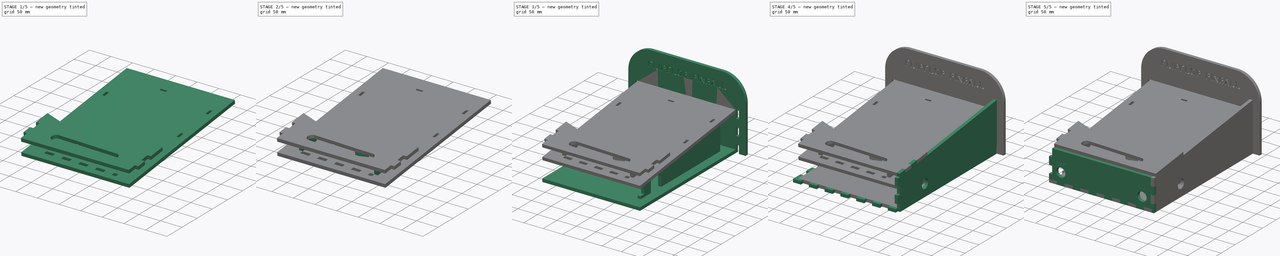
[diagram: build sequence overview — one tinted view per stage of 5, left to right]
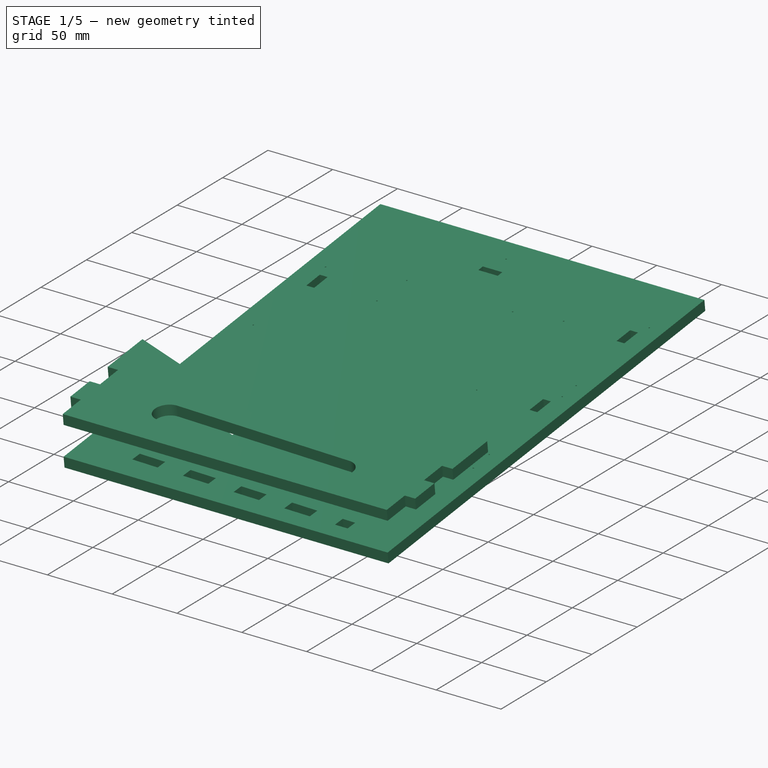
[diagram: stage 1 of 5 — iso view after this stage's code; geometry added in this stage tinted green]
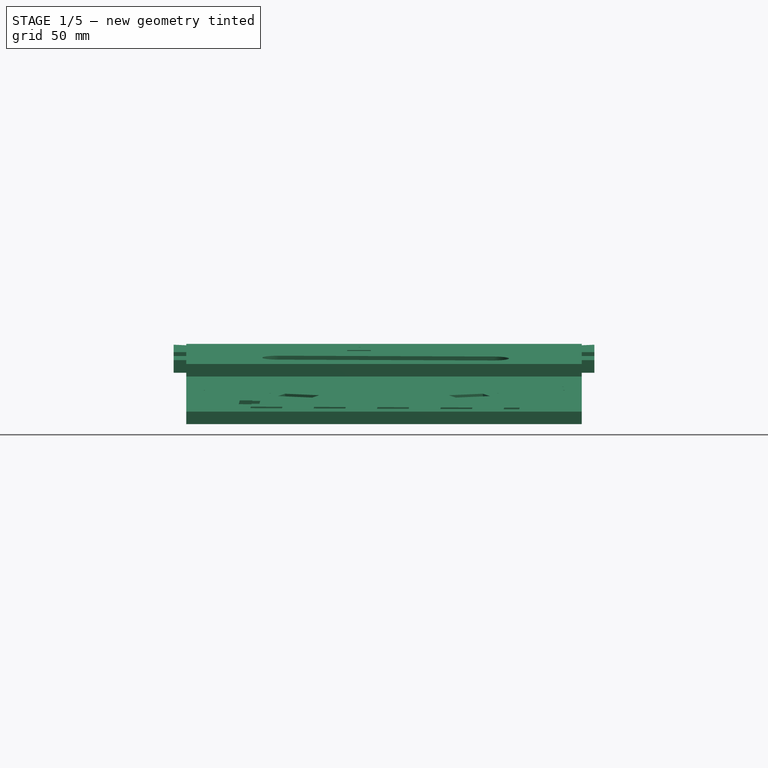
[diagram: stage 1 of 5 — front view after this stage's code; geometry added in this stage tinted green]
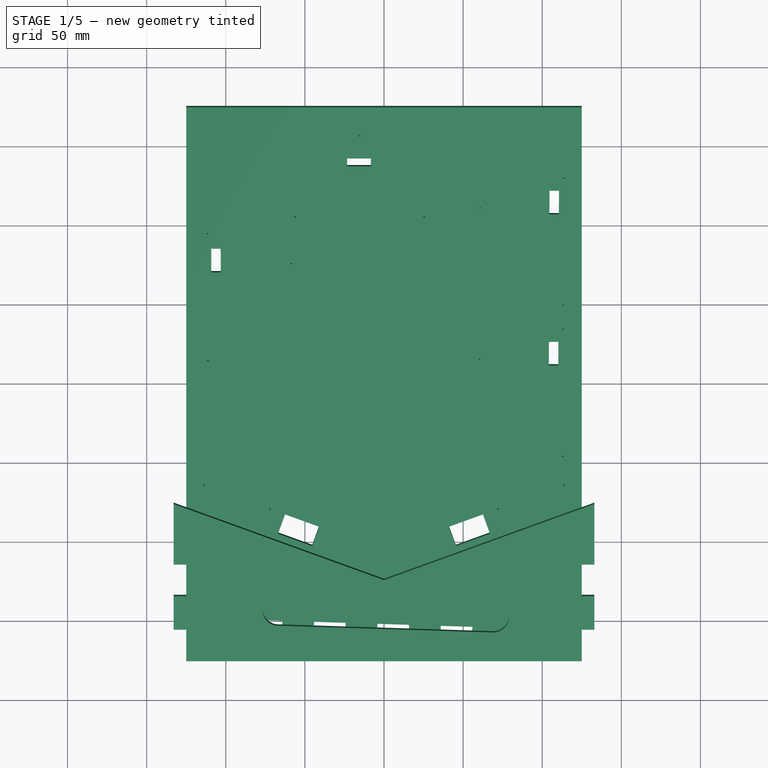
[diagram: stage 1 of 5 — top view after this stage's code; geometry added in this stage tinted green]
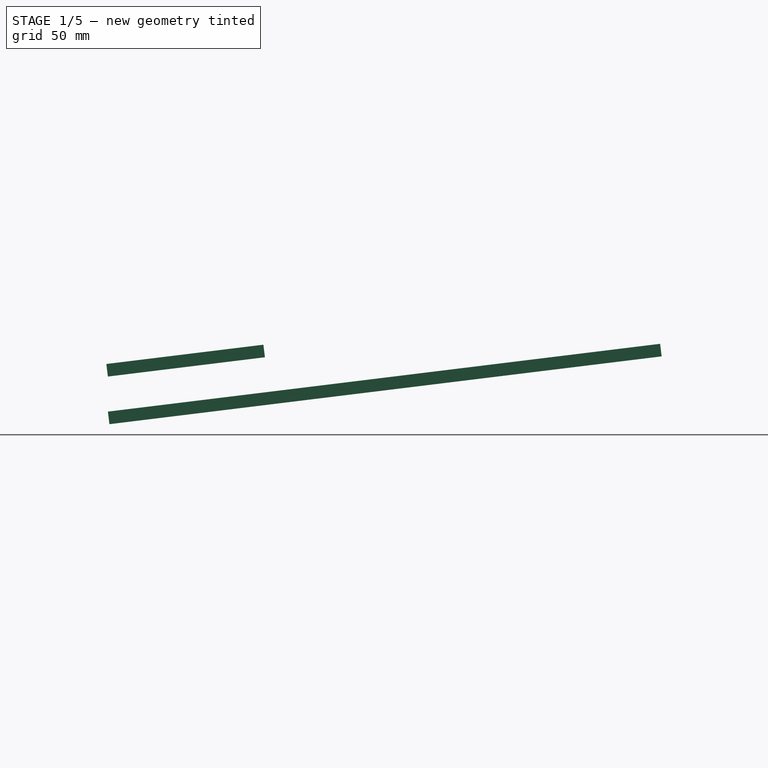
[diagram: stage 1 of 5 — right view after this stage's code; geometry added in this stage tinted green]
FCSTD DOCUMENT  (FreeCAD 0.21RUnknown)
Label: base
License: All rights reserved
LicenseURL: https://en.wikipedia.org/wiki/All_rights_reserved
objects: Sketcher::SketchObject×24, PartDesign::Pad×21, PartDesign::Plane×17, Part::Part2DObjectPython×16, PartDesign::Pocket×16, PartDesign::ShapeBinder×16, PartDesign::Body×11, PartDesign::Mirrored×5, Part::Mirroring×3, Spreadsheet::Sheet×1
note: 166 computed .brp shape members not serialized (recipe doc carries the construction recipe); baked Part::Feature solids carry a one-line shape summary decoded from their .brp

FEATURE [PartDesign::Plane] DatumPlane004
  AttachmentOffset = pos=(0,0,101.487) rot=(1,0,0;0.122173rad)
  Length = 207.097
  MapMode = 5
  Placement = pos=(0,0,101.487) rot=(1,0,0;0.122173rad)
  ResizeMode = 0
  Support = -> [XY_Plane005]
  Width = 237.268
  expr: .AttachmentOffset.Base.x = 0
  expr: .AttachmentOffset.Base.z = <<Var>>.FrontHeight + tan(<<Var>>.LidAngle) * <<Var>>.BaseDepth / 2
  expr: .AttachmentOffset.Rotation.Roll = <<Var>>.LidAngle
FEATURE [Sketcher::SketchObject] Sketch005
  FullyConstrained = true
  MapMode = 5
  Placement = pos=(0,0,101.487) rot=(1,0,0;0.122173rad)
  Support = -> [DatumPlane004]
  expr: Constraints[10] = <<Var>>.BaseWidth + 2 * <<Var>>.MdfThickness
  expr: Constraints[3] = <<Var>>.TopHeight / 2
  expr: Constraints[9] = <<Var>>.CoverHeight
  sketch-geometry (5):
    g0: LineSegment StartX=133 StartY=-176.314 StartZ=0 EndX=133 EndY=-76.3142 EndZ=0
    g1: LineSegment StartX=133 StartY=-76.3142 StartZ=0 EndX=0 EndY=-124.722 EndZ=0
    g2: LineSegment StartX=0 StartY=-124.722 StartZ=0 EndX=-133 EndY=-76.3142 EndZ=0
    g3: LineSegment StartX=-133 StartY=-76.3142 StartZ=0 EndX=-133 EndY=-176.314 EndZ=0
    g4: LineSegment StartX=-133 StartY=-176.314 StartZ=0 EndX=133 EndY=-176.314 EndZ=0
  constraints (14):
    c: Coincident(g1,g0)
    c: Coincident(g2,g1)
    c: Coincident(g3,g2)
    c: DistanceY(g0,g-1) = 176.314
    c: Vertical(g3)
    c: Vertical(g0)
    c: Equal(g0,g3)
    c: PointOnObject(g1,g-2)
    c: Angle(g1,g2) = 2.44346
    c: DistanceY(g0,g0) = 100
    c: DistanceX(g3,g0) = 266
    c: Coincident(g4,g3)
    c: Coincident(g4,g0)
    c: Symmetric(g0,g3,g-2)
FEATURE [PartDesign::Pad] Pad005
  Direction = (0,-0.121869,0.992546)
  Length = 8
  Length2 = 10
  Placement = pos=(0,0,101.487) rot=(1,0,0;0.122173rad)
  Profile = -> Sketch005
  ReferenceAxis = -> Sketch005 [N_Axis]
  Type = 0
  expr: Length = <<Var>>.MdfThickness
FEATURE [PartDesign::ShapeBinder] ShapeBinder003
  Placement = pos=(0,2e-15,101.487) rot=(1,0,0;0.122173rad)
  Support = -> [Sketch009]
  TraceSupport = false
FEATURE [PartDesign::Pocket] Pocket006
  BaseFeature = -> Pad005
  Direction = (0,0.121869,-0.992546)
  Length = 5
  Length2 = 5
  Placement = pos=(0,0,101.487) rot=(1,0,0;0.122173rad)
  Profile = -> ShapeBinder003
  Reversed = true
  Type = 1
FEATURE [PartDesign::Mirrored] Mirrored002
  BaseFeature = -> Pocket006
  MirrorPlane = -> YZ_Plane005
  Originals = -> [Pocket006]
  Placement = pos=(0,0,101.487) rot=(1,0,0;0.122173rad)
FEATURE [PartDesign::Body] Body  label="Bottom"
  Group = -> [Sketch,Pad,Sketch006,Pad006,Mirrored,DatumPlane005,DatumPlane006,Sketch007,Pad007,DatumPlane009,Sketch010,Pad010,ShapeBinder007,Pocket009,Mirrored004]
  Origin = -> Origin
  Tip = -> Mirrored004
FEATURE [Part::Part2DObjectPython] Shape2DView  # Draft 2D object (typed FeaturePython)
  AutoUpdate = true
  Base = -> Body002
  Clip = false
  FuseArch = false
  HiddenLines = false
  InPlace = true
  OnlySolids = false
  Placement = pos=(233,50,0) rot=(0,0,1;0rad)
  Projection = (0,-1,0)
  ProjectionMode = 0
  SegmentLength = 0.05
  Tessellation = false
  VisibleOnly = false
FEATURE [Part::Part2DObjectPython] Shape2DView001  # Draft 2D object (typed FeaturePython)
  AutoUpdate = true
  Base = -> Mirrored004
  Clip = false
  FaceNumbers = [3]
  FuseArch = false
  HiddenLines = false
  InPlace = true
  OnlySolids = false
  Projection = (0,0,1)
  ProjectionMode = 0
  SegmentLength = 0.05
  Tessellation = false
  VisibleOnly = false
FEATURE [Part::Part2DObjectPython] Shape2DView002  # Draft 2D object (typed FeaturePython)
  AutoUpdate = true
  Base = -> Pad011
  Clip = false
  FaceNumbers = [72]
  FuseArch = false
  HiddenLines = false
  InPlace = true
  OnlySolids = false
  Placement = pos=(513,0,0) rot=(0,0,1;0rad)
  Projection = (-1,-2.98023e-08,8.9407e-08)
  ProjectionMode = 0
  SegmentLength = 0.05
  Tessellation = false
  VisibleOnly = false
FEATURE [Part::Part2DObjectPython] Shape2DView003  # Draft 2D object (typed FeaturePython)
  AutoUpdate = true
  Base = -> Part__Mirroring
  Clip = false
  FaceNumbers = [72]
  FuseArch = false
  HiddenLines = false
  InPlace = true
  OnlySolids = false
  Placement = pos=(376.74,-159.047,0) rot=(0,0,1;1.5708rad)
  Projection = (1,-4.76837e-07,2.84e-14)
  ProjectionMode = 0
  SegmentLength = 0.05
  Tessellation = false
  VisibleOnly = false
FEATURE [Part::Part2DObjectPython] Shape2DView004  # Draft 2D object (typed FeaturePython)
  AutoUpdate = true
  Base = -> Mirrored003
  Clip = false
  FaceNumbers = [3]
  FuseArch = false
  HiddenLines = false
  InPlace = true
  OnlySolids = false
  Placement = pos=(-153,75,0) rot=(0,0,1;0rad)
  Projection = (0,-1,0)
  ProjectionMode = 0
  SegmentLength = 0.05
  Tessellation = false
  VisibleOnly = false
FEATURE [Part::Part2DObjectPython] Shape2DView005  # Draft 2D object (typed FeaturePython)
  AutoUpdate = true
  Base = -> Part__Mirroring001
  Clip = false
  FuseArch = false
  HiddenLines = false
  InPlace = true
  OnlySolids = false
  Placement = pos=(-517.902,39.8868,0) rot=(0,0,1;0rad)
  Projection = (1,0,0)
  ProjectionMode = 0
  SegmentLength = 0.05
  Tessellation = false
  VisibleOnly = false
FEATURE [Part::Part2DObjectPython] Clone2D  label="Shape2DView005 (2D)"  # Draft 2D object (typed FeaturePython)
  Fuse = false
  Objects = -> [Shape2DView005]
  Placement = pos=(-346.181,30.7823,0) rot=(0,0,1;3.14159rad)
  Scale = (1,1,1)
FEATURE [Part::Part2DObjectPython] Shape2DView006  # Draft 2D object (typed FeaturePython)
  AutoUpdate = true
  Base = -> Mirrored002
  Clip = false
  FaceNumbers = [3]
  FuseArch = false
  HiddenLines = false
  InPlace = true
  OnlySolids = false
  Placement = pos=(-297.533,-296.946,0) rot=(0,0,-1;1.5708rad)
  Projection = (0,-0.121869,0.992546)
  ProjectionMode = 0
  SegmentLength = 0.05
  Tessellation = false
  VisibleOnly = false
FEATURE [PartDesign::ShapeBinder] ShapeBinder008
  Placement = pos=(0,2e-15,101.487) rot=(1,0,0;0.122173rad)
  Support = -> [Sketch005]
  TraceSupport = false
FEATURE [PartDesign::Plane] DatumPlane014
  AttachmentOffset = pos=(0,0,79.3221) rot=(1,0,0;0.122173rad)
  Length = 207.097
  MapMode = 5
  Placement = pos=(0,0,79.3221) rot=(1,0,0;0.122173rad)
  ResizeMode = 0
  Support = -> [XY_Plane008]
  Width = 237.268
  expr: .AttachmentOffset.Base.z = tan(<<Var>>.LidAngle) * <<Var>>.BaseDepth / 2 + <<Var>>.MdfThickness / cos(<<Var>>.LidAngle) + <<Var>>.FrontHeight - <<Var>>.LidSunkenDepth
  expr: .AttachmentOffset.Rotation.Roll = <<Var>>.LidAngle
FEATURE [Sketcher::SketchObject] Sketch016
  FullyConstrained = false
  MapMode = 5
  Placement = pos=(0,0,79.3221) rot=(1,0,0;0.122173rad)
  Support = -> [DatumPlane014]
  expr: Constraints[7] = <<Var>>.MdfThickness
  expr: Constraints[8] = <<Var>>.RampLength
  sketch-geometry (8):
    g0: LineSegment StartX=-84.4491 StartY=-158.425 StartZ=0 EndX=-84.1937 EndY=-150.43 EndZ=0
    g1: LineSegment StartX=-84.1937 StartY=-150.43 StartZ=0 EndX=85.7196 EndY=-155.855 EndZ=0
    g2: LineSegment StartX=85.7196 StartY=-155.855 StartZ=0 EndX=85.4643 EndY=-163.851 EndZ=0
    g3: LineSegment StartX=85.4643 StartY=-163.851 StartZ=0 EndX=-84.4491 EndY=-158.425 EndZ=0
    g4: LineSegment StartX=-84.1937 StartY=-150.43 StartZ=0 EndX=-70.2009 EndY=-150.876 EndZ=0
    g5: LineSegment StartX=-70.2009 StartY=-150.876 StartZ=0 EndX=-68.7646 EndY=-105.899 EndZ=0
    g6: LineSegment StartX=-68.7646 StartY=-105.899 StartZ=0 EndX=-82.7575 EndY=-105.452 EndZ=0
    g7: LineSegment StartX=-82.7575 StartY=-105.452 StartZ=0 EndX=-84.1937 EndY=-150.43 EndZ=0
  constraints (20):
    c: Coincident(g1,g0)
    c: Coincident(g2,g1)
    c: Coincident(g3,g2)
    c: Coincident(g3,g0)
    c: Perpendicular(g3,g0)
    c: Parallel(g0,g2)
    c: Parallel(g3,g1)
    c: Distance(g0) = 8
    c: Distance(g1) = 170
    c: Coincident(g4,g0)
    c: PointOnObject(g4,g1)
    c: Coincident(g5,g4)
    c: Coincident(g6,g5)
    c: Coincident(g7,g6)
    c: Coincident(g7,g0)
    c: Parallel(g6,g1)
    c: Perpendicular(g6,g5)
    c: Parallel(g5,g7)
    c: Distance(g6) = 14
    c: Distance(g5) = 45
FEATURE [PartDesign::Pad] Pad016
  Direction = (0,-0.121869,0.992546)
  Length = 15
  Length2 = 10
  Placement = pos=(0,0,79.3221) rot=(1,0,0;0.122173rad)
  Profile = -> Sketch016
  ReferenceAxis = -> Sketch016 [N_Axis]
  Type = 0
FEATURE [PartDesign::Pad] Pad018
  BaseFeature = -> Pad016
  Direction = (0,-0.121869,0.992546)
  Length = 8
  Length2 = 10
  Placement = pos=(0,0,79.3221) rot=(1,0,0;0.122173rad)
  Profile = -> Sketch017
  ReferenceAxis = -> Sketch017 [N_Axis]
  Refine = true
  Reversed = true
  Type = 0
  expr: Length = <<Var>>.MdfThickness
FEATURE [PartDesign::Body] Body010  label="RampWall"
  Group = -> [DatumPlane016,ShapeBinder010,Sketch020,Pad020,Sketch021,Pad021]
  Origin = -> Origin010
  Tip = -> Pad021
FEATURE [PartDesign::ShapeBinder] ShapeBinder011
  Placement = pos=(0,-2e-15,79.3221) rot=(1,0,0;0.122173rad)
  Support = -> [Sketch017]
  TraceSupport = false
FEATURE [PartDesign::ShapeBinder] ShapeBinder012
  Placement = pos=(0,-2e-15,79.3221) rot=(1,0,0;0.122173rad)
  Support = -> [Sketch019]
  TraceSupport = false
FEATURE [Sketcher::SketchObject] Sketch015
  ExternalGeometry = -> [ShapeBinder008,ShapeBinder012]
  FullyConstrained = false
  MapMode = 5
  Placement = pos=(0,0,71.262) rot=(1,0,0;0.122173rad)
  Support = -> [DatumPlane011]
  expr: Constraints[17] = <<Var>>.ServoWidth
  expr: Constraints[183] = 16
  expr: Constraints[184] = <<Var>>.ServoWidth / 2
  expr: Constraints[18] = <<Var>>.ServoLength
  expr: Constraints[38] = <<Var>>.ScrewDiameter
  expr: Constraints[39] = <<Var>>.ScrewDiameter
  expr: Constraints[47] = <<Var>>.ScrewDiameter
  expr: Constraints[57] = <<Var>>.BigSwitchHeight
  expr: Constraints[58] = <<Var>>.BigSwitchLength
  expr: Constraints[60] = <<Var>>.BigSwitchLeverLength
  expr: Constraints[76] = <<Var>>.ScrewDiameter
  expr: Constraints[7] = <<Var>>.BaseWidth
  expr: Constraints[81] = <<Var>>.BigSwitchLength
  expr: Constraints[85] = <<Var>>.BigSwitchHeight
  expr: Constraints[87] = <<Var>>.BigSwitchLeverLength
  expr: Constraints[8] = <<Var>>.BaseDepth / (2 * cos(<<Var>>.LidAngle))
  expr: Constraints[9] = <<Var>>.BaseDepth / (2 * cos(<<Var>>.LidAngle)) - <<Var>>.MdfThickness * tan(<<Var>>.LidAngle)
  sketch-geometry (85):
    g0: LineSegment StartX=-125 StartY=-175.332 StartZ=0 EndX=125 EndY=-175.332 EndZ=0
    g1: LineSegment StartX=125 StartY=-175.332 StartZ=0 EndX=125 EndY=176.314 EndZ=0
    g2: LineSegment StartX=125 StartY=176.314 StartZ=0 EndX=-125 EndY=176.314 EndZ=0
    g3: LineSegment StartX=-125 StartY=176.314 StartZ=0 EndX=-125 EndY=-175.332 EndZ=0
    g4: LineSegment StartX=-66.9722 StartY=-94.6947 StartZ=0 EndX=-62.5259 EndY=-82.4787 EndZ=0
    g5: LineSegment StartX=-62.5259 StartY=-82.4787 StartZ=0 EndX=-40.913 EndY=-90.3452 EndZ=0
    g6: LineSegment StartX=-40.913 StartY=-90.3452 StartZ=0 EndX=-45.3593 EndY=-102.561 EndZ=0
    g7: LineSegment StartX=-45.3593 StartY=-102.561 StartZ=0 EndX=-66.9722 EndY=-94.6947 EndZ=0
    g8: LineSegment StartX=62.5259 StartY=-82.4787 StartZ=0 EndX=40.913 EndY=-90.3452 EndZ=0
    g9: LineSegment StartX=66.9722 StartY=-94.6947 StartZ=0 EndX=62.5259 EndY=-82.4787 EndZ=0
    g10: LineSegment StartX=45.3593 StartY=-102.561 StartZ=0 EndX=66.9722 EndY=-94.6947 EndZ=0
    g11: LineSegment StartX=40.913 StartY=-90.3452 StartZ=0 EndX=45.3593 EndY=-102.561 EndZ=0
    g12: LineSegment StartX=-133 StartY=-56.8283 StartZ=0 EndX=0 EndY=-105.236 EndZ=0
    g13: LineSegment StartX=0 StartY=-105.236 StartZ=0 EndX=133 EndY=-56.8283 EndZ=0
    g14: Circle CenterX=-113.644 CenterY=-63.8733 CenterZ=0 NormalX=0 NormalY=0 NormalZ=1 AngleXU=0 Radius=0.5
    g15: Circle CenterX=-72.0142 CenterY=-79.0253 CenterZ=0 NormalX=0 NormalY=0 NormalZ=1 AngleXU=0 Radius=0.5
    g16: Circle CenterX=113.644 CenterY=-63.8733 CenterZ=0 NormalX=0 NormalY=0 NormalZ=1 AngleXU=0 Radius=0.5
    g17: Circle CenterX=72.0142 CenterY=-79.0253 CenterZ=0 NormalX=0 NormalY=0 NormalZ=1 AngleXU=0 Radius=0.5
    g18: Circle CenterX=-56.1898 CenterY=106.654 CenterZ=0 NormalX=0 NormalY=0 NormalZ=1 AngleXU=0 Radius=0.5
    g19: Circle CenterX=25.4831 CenterY=106.654 CenterZ=0 NormalX=0 NormalY=0 NormalZ=1 AngleXU=0 Radius=0.5
    g20: Circle CenterX=-15.3534 CenterY=158.198 CenterZ=0 NormalX=0 NormalY=0 NormalZ=1 AngleXU=0 Radius=0.5
    g21: LineSegment StartX=-35.4448 StartY=116.555 StartZ=0 EndX=-15.4448 EndY=116.555 EndZ=0
    g22: LineSegment StartX=-15.4448 StartY=116.555 StartZ=0 EndX=-15.4448 EndY=129.555 EndZ=0
    g23: LineSegment StartX=-15.4448 StartY=129.555 StartZ=0 EndX=-35.4448 EndY=129.555 EndZ=0
    g24: LineSegment StartX=-35.4448 StartY=129.555 StartZ=0 EndX=-35.4448 EndY=116.555 EndZ=0
    g25: LineSegment StartX=-35.4448 StartY=116.555 StartZ=0 EndX=18.7196 EndY=107.005 EndZ=0
    g26: LineSegment StartX=-56.1898 StartY=106.654 StartZ=0 EndX=-15.3534 EndY=158.198 EndZ=0
    g27: LineSegment StartX=-15.3534 StartY=158.198 StartZ=0 EndX=25.4831 EndY=106.654 EndZ=0
    g28: LineSegment StartX=25.4831 StartY=106.654 StartZ=0 EndX=-56.1898 EndY=106.654 EndZ=0
    g29: LineSegment StartX=-23.3086 StartY=143.752 StartZ=0 EndX=-8.30857 EndY=143.752 EndZ=0
    g30: LineSegment StartX=-8.30857 StartY=143.752 StartZ=0 EndX=-8.30858 EndY=138.752 EndZ=0
    g31: LineSegment StartX=-8.30858 StartY=138.752 StartZ=0 EndX=-23.3086 EndY=138.752 EndZ=0
    g32: LineSegment StartX=-23.3086 StartY=138.752 StartZ=0 EndX=-23.3086 EndY=143.752 EndZ=0
    g33: Circle CenterX=113.641 CenterY=131.42 CenterZ=0 NormalX=0 NormalY=0 NormalZ=1 AngleXU=0 Radius=0.5
    g34: Circle CenterX=60.8222 CenterY=112.424 CenterZ=0 NormalX=0 NormalY=0 NormalZ=1 AngleXU=0 Radius=0.5
    g35: Circle CenterX=113.362 CenterY=50.7466 CenterZ=0 NormalX=0 NormalY=0 NormalZ=1 AngleXU=0 Radius=0.5
    g36: LineSegment StartX=80.2651 StartY=106.876 StartZ=0 EndX=90.4146 EndY=114.999 EndZ=0
    g37: LineSegment StartX=90.4146 StartY=114.999 StartZ=0 EndX=102.912 EndY=99.3847 EndZ=0
    g38: LineSegment StartX=102.912 StartY=99.3847 StartZ=0 EndX=92.7625 EndY=91.2614 EndZ=0
    g39: LineSegment StartX=92.7625 StartY=91.2614 StartZ=0 EndX=80.2651 EndY=106.876 EndZ=0
    g40: LineSegment StartX=80.2651 StartY=106.876 StartZ=0 EndX=106.654 EndY=58.6203 EndZ=0
    g41: LineSegment StartX=60.8222 StartY=112.424 StartZ=0 EndX=113.362 EndY=50.7466 EndZ=0
    g42: LineSegment StartX=113.362 StartY=50.7466 StartZ=0 EndX=113.641 EndY=131.42 EndZ=0
    g43: LineSegment StartX=113.641 StartY=131.42 StartZ=0 EndX=60.8222 EndY=112.424 EndZ=0
    g44: LineSegment StartX=104.612 StartY=123.238 StartZ=0 EndX=104.537 EndY=108.238 EndZ=0
    g45: LineSegment StartX=104.537 StartY=108.238 StartZ=0 EndX=110.537 EndY=108.208 EndZ=0
    g46: LineSegment StartX=110.537 StartY=108.208 StartZ=0 EndX=110.612 EndY=123.208 EndZ=0
    g47: LineSegment StartX=110.612 StartY=123.208 StartZ=0 EndX=104.612 EndY=123.238 EndZ=0
    g48: Circle CenterX=-111.468 CenterY=96.0032 CenterZ=0 NormalX=0 NormalY=0 NormalZ=1 AngleXU=0 Radius=0.5
    g49: Circle CenterX=-58.649 CenterY=77.0074 CenterZ=0 NormalX=0 NormalY=0 NormalZ=1 AngleXU=0 Radius=0.5
    g50: Circle CenterX=-111.188 CenterY=15.3303 CenterZ=0 NormalX=0 NormalY=0 NormalZ=1 AngleXU=0 Radius=0.5
    g51: LineSegment StartX=-78.092 StartY=71.4596 StartZ=0 EndX=-88.2414 EndY=79.583 EndZ=0
    g52: LineSegment StartX=-88.2414 StartY=79.583 StartZ=0 EndX=-100.739 EndY=63.9684 EndZ=0
    g53: LineSegment StartX=-100.739 StartY=63.9684 StartZ=0 EndX=-90.5894 EndY=55.8451 EndZ=0
    g54: LineSegment StartX=-90.5894 StartY=55.8451 StartZ=0 EndX=-78.092 EndY=71.4596 EndZ=0
    g55: LineSegment StartX=-78.092 StartY=71.4596 StartZ=0 EndX=-104.481 EndY=23.204 EndZ=0
    g56: LineSegment StartX=-58.649 StartY=77.0074 StartZ=0 EndX=-111.188 EndY=15.3303 EndZ=0
    g57: LineSegment StartX=-111.188 StartY=15.3303 StartZ=0 EndX=-111.468 EndY=96.0032 EndZ=0
    g58: LineSegment StartX=-111.468 StartY=96.0032 StartZ=0 EndX=-58.649 EndY=77.0074 EndZ=0
    g59: LineSegment StartX=-103.23 StartY=86.3929 StartZ=0 EndX=-103.154 EndY=71.3931 EndZ=0
    g60: LineSegment StartX=-103.154 StartY=71.3931 StartZ=0 EndX=-109.154 EndY=71.3626 EndZ=0
    g61: LineSegment StartX=-109.154 StartY=71.3626 StartZ=0 EndX=-109.23 EndY=86.3624 EndZ=0
    g62: LineSegment StartX=-109.23 StartY=86.3624 StartZ=0 EndX=-103.23 EndY=86.3929 EndZ=0
    g63: Circle CenterX=113.257 CenterY=35.3751 CenterZ=0 NormalX=0 NormalY=0 NormalZ=1 AngleXU=0 Radius=0.5
    g64: Circle CenterX=60.4375 CenterY=16.3793 CenterZ=0 NormalX=0 NormalY=0 NormalZ=1 AngleXU=0 Radius=0.5
    g65: Circle CenterX=112.977 CenterY=-45.2978 CenterZ=0 NormalX=0 NormalY=0 NormalZ=1 AngleXU=0 Radius=0.5
    g66: LineSegment StartX=79.8805 StartY=10.8315 StartZ=0 EndX=90.0299 EndY=18.9548 EndZ=0
    g67: LineSegment StartX=90.0299 StartY=18.9548 StartZ=0 EndX=102.527 EndY=3.34028 EndZ=0
    g68: LineSegment StartX=102.527 StartY=3.34028 StartZ=0 EndX=92.3779 EndY=-4.78304 EndZ=0
    g69: LineSegment StartX=92.3779 StartY=-4.78304 StartZ=0 EndX=79.8805 EndY=10.8315 EndZ=0
    g70: LineSegment StartX=79.8805 StartY=10.8315 StartZ=0 EndX=106.27 EndY=-37.4241 EndZ=0
    g71: LineSegment StartX=60.4375 StartY=16.3793 StartZ=0 EndX=112.977 EndY=-45.2978 EndZ=0
    g72: LineSegment StartX=112.977 StartY=-45.2978 StartZ=0 EndX=113.257 EndY=35.3751 EndZ=0
    g73: LineSegment StartX=113.257 StartY=35.3751 StartZ=0 EndX=60.4375 EndY=16.3793 EndZ=0
    g74: LineSegment StartX=104.227 StartY=27.1938 StartZ=0 EndX=104.152 EndY=12.194 EndZ=0
    g75: LineSegment StartX=104.152 StartY=12.194 StartZ=0 EndX=110.152 EndY=12.1639 EndZ=0
    g76: LineSegment StartX=110.152 StartY=12.1639 StartZ=0 EndX=110.227 EndY=27.1637 EndZ=0
    g77: LineSegment StartX=110.227 StartY=27.1637 StartZ=0 EndX=104.227 EndY=27.1938 EndZ=0
    g78: LineSegment StartX=-83.2362 StartY=-119.463 StartZ=0 EndX=-78.2388 EndY=-119.622 EndZ=0
    g79: LineSegment StartX=-78.2388 StartY=-119.622 StartZ=0 EndX=-78.7175 EndY=-134.614 EndZ=0
    g80: LineSegment StartX=-78.7175 StartY=-134.614 StartZ=0 EndX=-83.715 EndY=-134.455 EndZ=0
    g81: LineSegment StartX=-83.715 StartY=-134.455 StartZ=0 EndX=-83.2362 EndY=-119.463 EndZ=0
    g82: LineSegment StartX=-83.1564 StartY=-116.964 StartZ=0 EndX=-83.2362 EndY=-119.463 EndZ=0
    g83: LineSegment StartX=-83.7948 StartY=-136.954 StartZ=0 EndX=-83.715 EndY=-134.455 EndZ=0
    g84: GeomPoint X=-49.714 Y=-94.0591 Z=0
  constraints (185):
    c: Coincident(g0,g1)
    c: Coincident(g1,g2)
    c: Coincident(g2,g3)
    c: Coincident(g3,g0)
    c: Horizontal(g2)
    c: Vertical(g1)
    c: Vertical(g3)
    c: DistanceX(g2,g2) = 250
    c: DistanceY(g-1,g1) = 176.314
    c: DistanceY(g0,g-1) = 175.332
    c: Symmetric(g0,g0,g-2)
    c: Coincident(g5,g4)
    c: Coincident(g6,g5)
    c: Coincident(g7,g6)
    c: Coincident(g7,g4)
    c: Perpendicular(g7,g4)
    c: Parallel(g6,g4)
    c: Distance(g4) = 13
    c: Distance(g5) = 23
    c: Coincident(g8,g9)
    c: Coincident(g11,g8)
    c: Coincident(g10,g11)
    c: Coincident(g10,g9)
    c: Perpendicular(g10,g9)
    c: Parallel(g11,g9)
    c: Equal(g8,g10)
    c: Symmetric(g4,g8,g-2)
    c: Equal(g9,g4)
    c: Coincident(g13,g12)
    c: PointOnObject(g12,g-2)
    c: Parallel(g13,g-4)
    c: Parallel(g12,g-3)
    c: Symmetric(g6,g10,g-2)
    c: Perpendicular(g5,g6)
    c: PointOnObject(g12,g-5)
    c: PointOnObject(g13,g-6)
    c: PointOnObject(g14,g12)
    c: PointOnObject(g15,g12)
    c: Diameter(g14) = 1
    c: Diameter(g15) = 1
    c: Equal(g17,g15)
    c: Equal(g16,g14)
    c: Symmetric(g15,g17,g-2)
    c: Symmetric(g16,g14,g-2)
    c: PointOnObject(g4,g12)
    c: PointOnObject(g5,g12)
    c: Equal(g18,g19)
    c: Diameter(g19) = 1
    c: Equal(g20,g19)
    c: Coincident(g21,g22)
    c: Coincident(g22,g23)
    c: Coincident(g23,g24)
    c: Coincident(g24,g21)
    c: Horizontal(g21)
    c: Horizontal(g23)
    c: Vertical(g22)
    c: Vertical(g24)
    c: DistanceY(g22,g22) = 13
    c: DistanceX(g23,g23) = 20
    c: Coincident(g25,g21)
    c: Distance(g25) = 55
    c: Angle(g25,g21) = 0.174533
    c: Coincident(g26,g18)
    c: Coincident(g26,g20)
    c: Coincident(g27,g20)
    c: Coincident(g27,g19)
    c: Coincident(g28,g19)
    c: Coincident(g28,g18)
    c: Coincident(g29,g30)
    c: Coincident(g30,g31)
    c: Coincident(g31,g32)
    c: Coincident(g32,g29)
    c: DistanceX(g29,g29) = 15
    c: DistanceY(g30,g30) = 5
    c: Equal(g33,g34)
    c: Equal(g33,g35)
    c: Diameter(g33) = 1
    c: Coincident(g36,g37)
    c: Coincident(g37,g38)
    c: Coincident(g38,g39)
    c: Coincident(g39,g36)
    c: Distance(g37) = 20
    c: Parallel(g36,g38)
    c: Parallel(g37,g39)
    c: Perpendicular(g37,g36)
    c: Distance(g36) = 13
    c: Coincident(g40,g36)
    c: Distance(g40) = 55
    c: Angle(g40,g39) = 0.174533
    c: Coincident(g41,g34)
    c: Coincident(g41,g35)
    c: Coincident(g42,g35)
    c: Coincident(g42,g33)
    c: Coincident(g43,g33)
    c: Coincident(g43,g34)
    c: Coincident(g45,g44)
    c: Coincident(g46,g45)
    c: Coincident(g47,g46)
    c: Coincident(g47,g44)
    c: Perpendicular(g47,g44)
    c: Parallel(g44,g46)
    c: Parallel(g45,g47)
    c: Distance(g46) = 15
    c: Distance(g45) = 6
    c: Equal(g48,g49)
    c: Equal(g48,g50)
    c: Diameter(g48) = 1
    c: Coincident(g51,g52)
    c: Coincident(g52,g53)
    c: Coincident(g53,g54)
    c: Coincident(g54,g51)
    c: Distance(g52) = 20
    c: Parallel(g51,g53)
    c: Parallel(g52,g54)
    c: Perpendicular(g52,g51)
    c: Distance(g51) = 13
    c: Coincident(g55,g51)
    c: Distance(g55) = 55
    c: Angle(g55,g54) = -0.174533
    c: Coincident(g56,g49)
    c: Coincident(g56,g50)
    c: Coincident(g57,g50)
    c: Coincident(g57,g48)
    c: Coincident(g58,g48)
    c: Coincident(g58,g49)
    c: Coincident(g60,g59)
    c: Coincident(g61,g60)
    c: Coincident(g62,g61)
    c: Coincident(g62,g59)
    c: Perpendicular(g62,g59)
    c: Parallel(g59,g61)
    c: Parallel(g60,g62)
    c: Distance(g61) = 15
    c: Distance(g60) = 6
    c: Perpendicular(g29,g32)
    c: Parallel(g29,g31)
    c: Parallel(g32,g30)
    c: Equal(g63,g64)
    c: Equal(g63,g65)
    c: Equal(g33,g63) = 1
    c: Coincident(g66,g67)
    c: Coincident(g67,g68)
    c: Coincident(g68,g69)
    c: Coincident(g69,g66)
    c: Equal(g37,g67) = 20
    c: Parallel(g66,g68)
    c: Parallel(g67,g69)
    c: Perpendicular(g67,g66)
    c: Equal(g36,g66) = 13
    c: Coincident(g70,g66)
    c: Equal(g40,g70) = 55
    c: Angle(g70,g69) = 0.174533
    c: Coincident(g71,g64)
    c: Coincident(g71,g65)
    c: Coincident(g72,g65)
    c: Coincident(g72,g63)
    c: Coincident(g73,g63)
    c: Coincident(g73,g64)
    c: Coincident(g75,g74)
    c: Coincident(g76,g75)
    c: Coincident(g77,g76)
    c: Coincident(g77,g74)
    c: Perpendicular(g77,g74)
    c: Parallel(g74,g76)
    c: Parallel(g75,g77)
    c: Equal(g46,g76) = 15
    c: Equal(g45,g75) = 6
    c: PointOnObject(g78,g-7)
    c: Coincident(g79,g78)
    c: Coincident(g80,g79)
    c: PointOnObject(g80,g-7)
    c: Coincident(g81,g80)
    c: Parallel(g81,g79)
    c: Parallel(g78,g80)
    c: Coincident(g81,g78)
    c: Perpendicular(g81,g78)
    c: Distance(g78) = 5
    c: Distance(g79) = 15
    c: Coincident(g82,g-7)
    c: Coincident(g82,g78)
    c: Coincident(g83,g-7)
    c: Coincident(g83,g80)
    c: Equal(g83,g82)
    c: Distance(g84,g4) = 16
    c: Distance(g84,g5) = 6.5
FEATURE [PartDesign::Pad] Pad015
  Direction = (0,-0.121869,0.992546)
  Length = 8
  Length2 = 10
  Placement = pos=(0,0,71.262) rot=(1,0,0;0.122173rad)
  Profile = -> Sketch015
  ReferenceAxis = -> Sketch015 [N_Axis]
  Type = 0
  expr: Length = <<Var>>.MdfThickness
FEATURE [PartDesign::ShapeBinder] ShapeBinder013
  Placement = pos=(0,-2e-15,79.3221) rot=(1,0,0;0.122173rad)
  Support = -> [Sketch021]
  TraceSupport = false
FEATURE [PartDesign::Pocket] Pocket010
  BaseFeature = -> Pad015
  Direction = (0,0.121869,-0.992546)
  Length = 5
  Length2 = 5
  Placement = pos=(0,0,71.262) rot=(1,0,0;0.122173rad)
  Profile = -> ShapeBinder011
  Type = 1
FEATURE [PartDesign::Pocket] Pocket011
  BaseFeature = -> Pocket010
  Direction = (2e-16,0.121869,-0.992546)
  Length = 5
  Length2 = 5
  Placement = pos=(0,0,71.262) rot=(1,0,0;0.122173rad)
  Profile = -> ShapeBinder012
  Type = 1
FEATURE [Part::Part2DObjectPython] Shape2DView011  # Draft 2D object (typed FeaturePython)
  AutoUpdate = true
  Base = -> Pocket012
  Clip = false
  FaceNumbers = [4]
  FuseArch = false
  HiddenLines = false
  InPlace = true
  OnlySolids = false
  Projection = (0,-0.121869,0.992546)
  ProjectionMode = 0
  SegmentLength = 0.05
  Tessellation = false
  VisibleOnly = false
FEATURE [PartDesign::ShapeBinder] ShapeBinder015
  Placement = pos=(0,-1.82804,14.8882) rot=(0,0,1;0rad)
  Support = -> [Pad018]
  TraceSupport = false
FEATURE [Sketcher::SketchObject] Sketch025
  ExternalGeometry = -> [ShapeBinder015]
  FullyConstrained = false
  MapMode = 5
  Placement = pos=(0,-0.974955,109.428) rot=(1,0,0;0.122173rad)
  Support = -> [Mirrored002]
  sketch-geometry (6):
    g0: LineSegment StartX=-67.0314 StartY=-153.679 StartZ=0 EndX=68.5573 EndY=-158.009 EndZ=0
    g1: LineSegment StartX=-84.1937 StartY=-153.131 StartZ=0 EndX=-67.0314 EndY=-153.679 EndZ=0
    g2: LineSegment StartX=85.7196 StartY=-158.557 StartZ=0 EndX=68.5573 EndY=-158.009 EndZ=0
    g3: ArcOfCircle CenterX=-66.7078 CenterY=-143.545 CenterZ=0 NormalX=0 NormalY=0 NormalZ=1 AngleXU=0 Radius=10.1386 StartAngle=1.53887 EndAngle=4.68047
    g4: ArcOfCircle CenterX=68.8809 CenterY=-147.875 CenterZ=0 NormalX=0 NormalY=0 NormalZ=1 AngleXU=0 Radius=10.1386 StartAngle=4.68047 EndAngle=7.82206
    g5: LineSegment StartX=-66.3842 StartY=-133.412 StartZ=0 EndX=69.2045 EndY=-137.742 EndZ=0
  constraints (13):
    c: PointOnObject(g0,g-3)
    c: Coincident(g1,g-3)
    c: Coincident(g2,g-3)
    c: Equal(g1,g2)
    c: Coincident(g1,g0)
    c: PointOnObject(g0,g-3)
    c: Coincident(g0,g2)
    c: Coincident(g5,g4)
    c: Parallel(g5,g0)
    c: Equal(g5,g0)
    c: Tangent(g3,g0) = -1.5708
    c: Tangent(g4,g0) = -1.5708
    c: Tangent(g5,g3) = 1.5708
FEATURE [PartDesign::Pocket] Pocket015
  BaseFeature = -> Mirrored002
  Direction = (0,0.121869,-0.992546)
  Length = 5
  Length2 = 5
  Placement = pos=(0,0,101.487) rot=(1,0,0;0.122173rad)
  Profile = -> Sketch025
  ReferenceAxis = -> Sketch025 [N_Axis]
  Type = 1
FEATURE [PartDesign::Body] Body005  label="Cover"
  Group = -> [DatumPlane004,Sketch005,Pad005,ShapeBinder003,Pocket006,Mirrored002,Sketch025,ShapeBinder015,Pocket015]
  Origin = -> Origin005
  Tip = -> Pocket015
FEATURE [Part::Part2DObjectPython] Shape2DView012  # Draft 2D object (typed FeaturePython)
  AutoUpdate = true
  Base = -> Pocket015
  Clip = false
  FaceNumbers = [3]
  FuseArch = false
  HiddenLines = false
  InPlace = true
  OnlySolids = false
  Projection = (0,-0.121869,0.992546)
  ProjectionMode = 0
  SegmentLength = 0.05
  Tessellation = false
  VisibleOnly = false
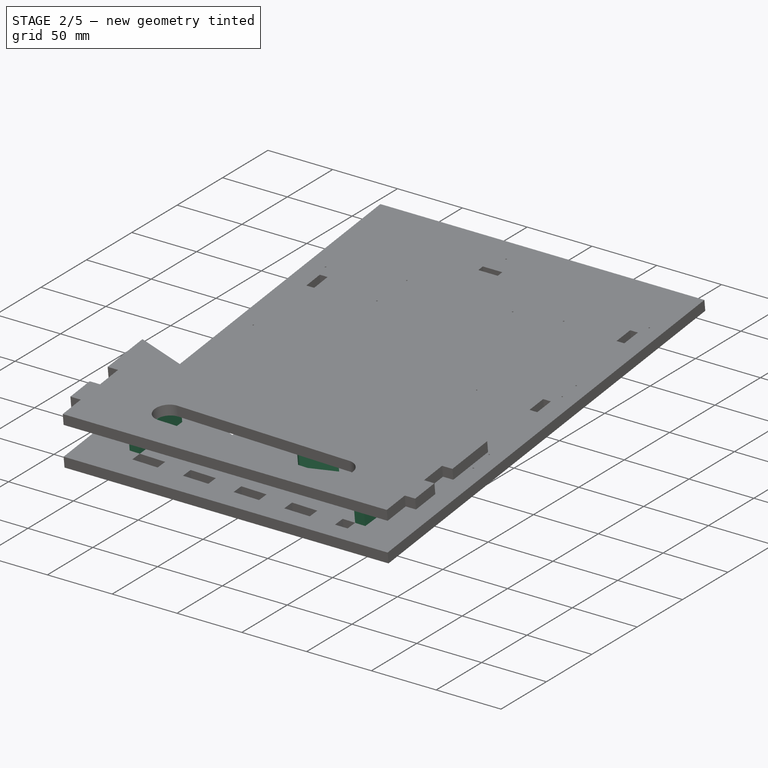
[diagram: stage 2 of 5 — iso view after this stage's code; geometry added in this stage tinted green]
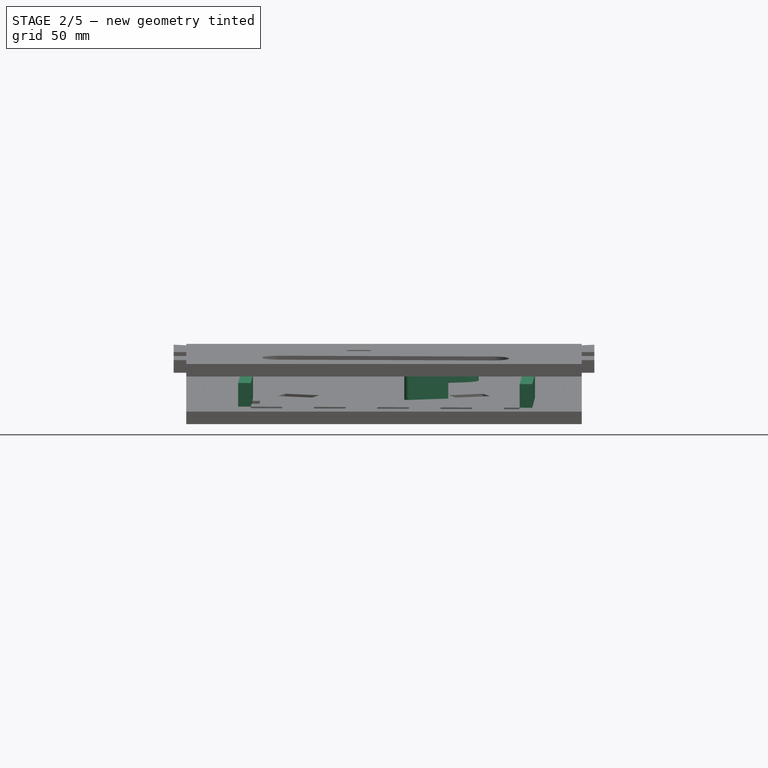
[diagram: stage 2 of 5 — front view after this stage's code; geometry added in this stage tinted green]
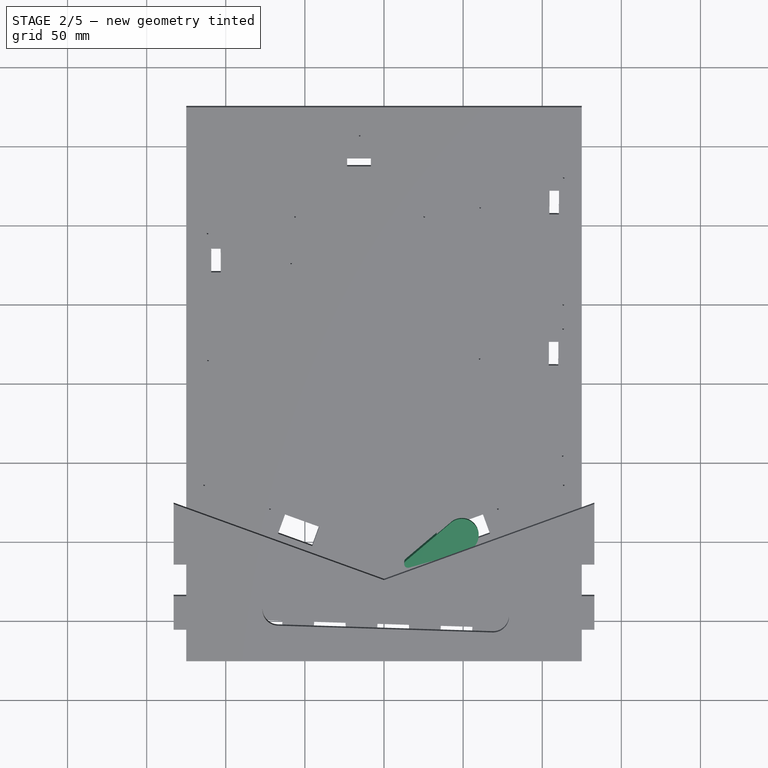
[diagram: stage 2 of 5 — top view after this stage's code; geometry added in this stage tinted green]
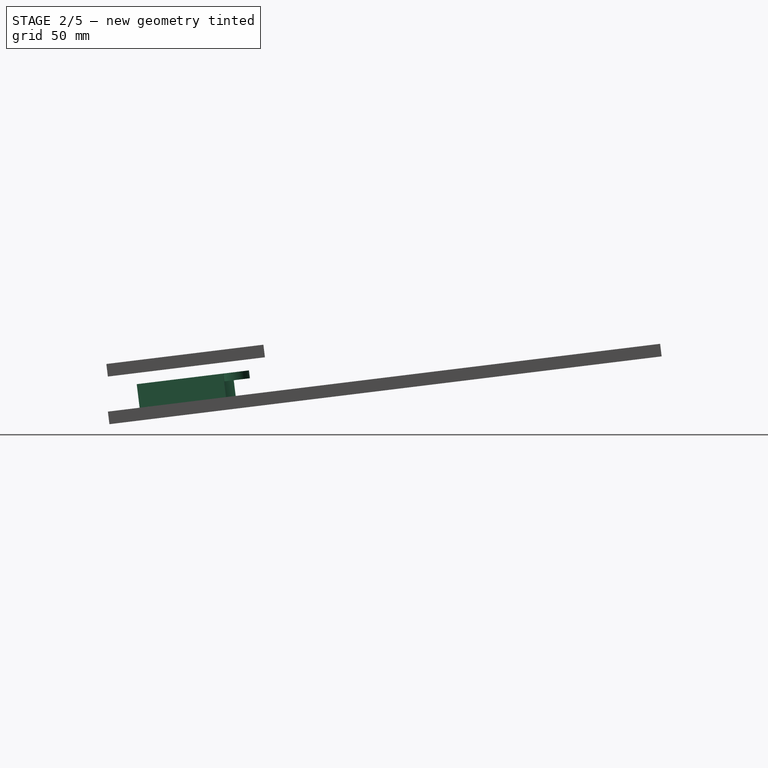
[diagram: stage 2 of 5 — right view after this stage's code; geometry added in this stage tinted green]
FEATURE [Sketcher::SketchObject] Sketch017
  ExternalGeometry = -> [Sketch016]
  FullyConstrained = true
  MapMode = 5
  Placement = pos=(0,0,79.3221) rot=(1,0,0;0.122173rad)
  Support = -> [DatumPlane014]
  expr: Constraints[8] = <<Var>>.MdfThickness
  sketch-geometry (24):
    g0: LineSegment StartX=-84.4491 StartY=-158.425 StartZ=0 EndX=-84.1937 EndY=-150.43 EndZ=0
    g1: LineSegment StartX=-84.1937 StartY=-150.43 StartZ=0 EndX=-64.2039 EndY=-151.068 EndZ=0
    g2: LineSegment StartX=-64.2039 StartY=-151.068 StartZ=0 EndX=-64.4593 EndY=-159.064 EndZ=0
    g3: LineSegment StartX=-64.4593 StartY=-159.064 StartZ=0 EndX=-84.4491 EndY=-158.425 EndZ=0
    g4: LineSegment StartX=-44.4234 StartY=-159.767 StartZ=0 EndX=-44.166 EndY=-151.708 EndZ=0
    g5: LineSegment StartX=-44.166 StartY=-151.708 StartZ=0 EndX=-24.1762 EndY=-152.346 EndZ=0
    g6: LineSegment StartX=-24.1762 StartY=-152.346 StartZ=0 EndX=-24.4316 EndY=-160.342 EndZ=0
    g7: LineSegment StartX=-24.4316 StartY=-160.342 StartZ=0 EndX=-44.4234 EndY=-159.767 EndZ=0
    g8: LineSegment StartX=-84.4491 StartY=-158.425 StartZ=0 EndX=-44.4234 EndY=-159.767 EndZ=0
    g9: LineSegment StartX=-4.39768 StartY=-161.108 StartZ=0 EndX=-4.13832 EndY=-152.986 EndZ=0
    g10: LineSegment StartX=-4.13832 StartY=-152.986 StartZ=0 EndX=15.8515 EndY=-153.624 EndZ=0
    g11: LineSegment StartX=15.8515 StartY=-153.624 StartZ=0 EndX=15.5962 EndY=-161.62 EndZ=0
    g12: LineSegment StartX=15.5962 StartY=-161.62 StartZ=0 EndX=-4.39768 EndY=-161.108 EndZ=0
    g13: LineSegment StartX=-44.4234 StartY=-159.767 StartZ=0 EndX=-4.39768 EndY=-161.108 EndZ=0
    g14: LineSegment StartX=35.628 StartY=-162.449 StartZ=0 EndX=35.8894 EndY=-154.264 EndZ=0
    g15: LineSegment StartX=35.8894 StartY=-154.264 StartZ=0 EndX=55.8792 EndY=-154.903 EndZ=0
    g16: LineSegment StartX=55.8792 StartY=-154.903 StartZ=0 EndX=55.6239 EndY=-162.898 EndZ=0
    g17: LineSegment StartX=55.6239 StartY=-162.898 StartZ=0 EndX=35.628 EndY=-162.449 EndZ=0
    g18: LineSegment StartX=-4.39768 StartY=-161.108 StartZ=0 EndX=35.628 EndY=-162.449 EndZ=0
    g19: LineSegment StartX=75.6537 StartY=-163.791 StartZ=0 EndX=75.9171 EndY=-155.542 EndZ=0
    g20: LineSegment StartX=75.9171 StartY=-155.542 StartZ=0 EndX=85.7196 EndY=-155.855 EndZ=0
    g21: LineSegment StartX=85.7196 StartY=-155.855 StartZ=0 EndX=85.4643 EndY=-163.851 EndZ=0
    g22: LineSegment StartX=85.4643 StartY=-163.851 StartZ=0 EndX=75.6537 EndY=-163.791 EndZ=0
    g23: LineSegment StartX=35.628 StartY=-162.449 StartZ=0 EndX=75.6537 EndY=-163.791 EndZ=0
  constraints (65):
    c: Coincident(g0,g-3)
    c: Coincident(g0,g-4)
    c: Coincident(g1,g0)
    c: Coincident(g2,g1)
    c: Coincident(g3,g2)
    c: Coincident(g3,g0)
    c: Perpendicular(g1,g2)
    c: Parallel(g3,g-4)
    c: Distance(g2) = 8
    c: Distance(g1) = 20
    c: Coincident(g5,g4)
    c: Coincident(g6,g5)
    c: Coincident(g7,g6)
    c: Coincident(g7,g4)
    c: Perpendicular(g5,g6)
    c: Equal(g2,g6) = 8
    c: Equal(g1,g5) = 20
    c: Coincident(g0,g8)
    c: Coincident(g4,g8)
    c: Distance(g8) = 40.0482
    c: Angle(g8) = -0.0334985
    c: Coincident(g10,g9)
    c: Coincident(g11,g10)
    c: Coincident(g12,g11)
    c: Coincident(g12,g9)
    c: Perpendicular(g10,g11)
    c: Equal(g2,g11) = 8
    c: Equal(g1,g10) = 20
    c: Coincident(g4,g13)
    c: Coincident(g9,g13)
    c: Equal(g8,g13)
    c: Parallel(g13,g8)
    c: Coincident(g15,g14)
    c: Coincident(g16,g15)
    c: Coincident(g17,g16)
    c: Coincident(g17,g14)
    c: Perpendicular(g15,g16)
    c: Equal(g2,g16) = 8
    c: Equal(g1,g15) = 20
    c: Coincident(g9,g18)
    c: Coincident(g14,g18)
    c: Equal(g8,g18)
    c: Parallel(g18,g8)
    c: Coincident(g20,g19)
    c: Coincident(g21,g20)
    c: Coincident(g22,g21)
    c: Coincident(g22,g19)
    c: Perpendicular(g20,g21)
    c: Equal(g2,g21) = 8
    c: Coincident(g14,g23)
    c: Coincident(g19,g23)
    c: Equal(g8,g23)
    c: Parallel(g23,g8)
    c: PointOnObject(g5,g-4)
    c: PointOnObject(g19,g-4)
    c: PointOnObject(g14,g-4)
    c: PointOnObject(g9,g-4)
    c: PointOnObject(g4,g-4)
    c: Perpendicular(g-4,g4)
    c: Perpendicular(g-4,g9)
    c: Perpendicular(g-4,g14)
    c: Perpendicular(g-4,g19)
    c: PointOnObject(g10,g-4)
    c: PointOnObject(g15,g-4)
    c: Coincident(g20,g-4)
FEATURE [PartDesign::Plane] DatumPlane015
  AttachmentOffset = pos=(0,0,79.3221) rot=(1,0,0;0.122173rad)
  Length = 146.859
  MapMode = 5
  Placement = pos=(0,0,79.3221) rot=(1,0,0;0.122173rad)
  ResizeMode = 0
  Support = -> [XY_Plane009]
  Width = 217.459
  expr: .AttachmentOffset.Base.z = tan(<<Var>>.LidAngle) * <<Var>>.BaseDepth / 2 + <<Var>>.MdfThickness / cos(<<Var>>.LidAngle) + <<Var>>.FrontHeight - <<Var>>.LidSunkenDepth
  expr: .AttachmentOffset.Rotation.Roll = <<Var>>.LidAngle
FEATURE [PartDesign::ShapeBinder] ShapeBinder009
  Placement = pos=(0,-2e-15,79.3221) rot=(1,0,0;0.122173rad)
  Support = -> [Sketch016]
  TraceSupport = false
FEATURE [Sketcher::SketchObject] Sketch018
  ExternalGeometry = -> [ShapeBinder009]
  FullyConstrained = true
  MapMode = 5
  Placement = pos=(0,0,79.3221) rot=(1,0,0;0.122173rad)
  Support = -> [DatumPlane015]
  expr: Constraints[10] = <<Var>>.SensorLength
  expr: Constraints[5] = <<Var>>.MdfThickness
  sketch-geometry (4):
    g0: LineSegment StartX=-84.1937 StartY=-150.43 StartZ=0 EndX=-92.1897 EndY=-150.174 EndZ=0
    g1: LineSegment StartX=-92.1897 StartY=-150.174 StartZ=0 EndX=-90.7534 EndY=-105.197 EndZ=0
    g2: LineSegment StartX=-90.7534 StartY=-105.197 StartZ=0 EndX=-82.7575 EndY=-105.452 EndZ=0
    g3: LineSegment StartX=-82.7575 StartY=-105.452 StartZ=0 EndX=-84.1937 EndY=-150.43 EndZ=0
  constraints (11):
    c: Coincident(g1,g0)
    c: Coincident(g2,g1)
    c: Coincident(g3,g2)
    c: Coincident(g3,g0)
    c: Coincident(g0,g-4)
    c: Distance(g0) = 8
    c: Parallel(g0,g-3)
    c: Parallel(g2,g0)
    c: Parallel(g3,g1)
    c: Perpendicular(g3,g2)
    c: Distance(g3) = 45
FEATURE [PartDesign::Pad] Pad017
  Direction = (0,-0.121869,0.992546)
  Length = 15
  Length2 = 10
  Placement = pos=(0,0,79.3221) rot=(1,0,0;0.122173rad)
  Profile = -> Sketch018
  ReferenceAxis = -> Sketch018 [N_Axis]
  Type = 0
FEATURE [PartDesign::Body] Body008  label="Ramp"
  Group = -> [DatumPlane014,Sketch016,Pad016,Sketch017,Pad018]
  Origin = -> Origin008
  Tip = -> Pad018
FEATURE [Sketcher::SketchObject] Sketch019
  ExternalGeometry = -> [Sketch018]
  FullyConstrained = true
  MapMode = 5
  Placement = pos=(0,0,79.3221) rot=(1,0,0;0.122173rad)
  Support = -> [DatumPlane015]
  expr: Constraints[10] = <<Var>>.MdfThickness
  sketch-geometry (6):
    g0: LineSegment StartX=-91.1524 StartY=-117.691 StartZ=0 EndX=-83.1564 EndY=-117.946 EndZ=0
    g1: LineSegment StartX=-83.1564 StartY=-117.946 StartZ=0 EndX=-83.7948 EndY=-137.936 EndZ=0
    g2: LineSegment StartX=-83.7948 StartY=-137.936 StartZ=0 EndX=-91.7907 EndY=-137.681 EndZ=0
    g3: LineSegment StartX=-91.7907 StartY=-137.681 StartZ=0 EndX=-91.1524 EndY=-117.691 EndZ=0
    g4: LineSegment StartX=-91.1524 StartY=-117.691 StartZ=0 EndX=-90.7534 EndY=-105.197 EndZ=0
    g5: LineSegment StartX=-92.1897 StartY=-150.174 StartZ=0 EndX=-91.7907 EndY=-137.681 EndZ=0
  constraints (16):
    c: PointOnObject(g0,g-4)
    c: Coincident(g1,g0)
    c: Coincident(g2,g1)
    c: PointOnObject(g2,g-4)
    c: Coincident(g3,g2)
    c: Distance(g3) = 20
    c: Coincident(g3,g0)
    c: Perpendicular(g3,g0)
    c: Parallel(g1,g3)
    c: Equal(g2,g0)
    c: Distance(g0) = 8
    c: Coincident(g4,g0)
    c: Coincident(g5,g-4)
    c: Equal(g4,g5)
    c: Coincident(g4,g-4)
    c: Coincident(g5,g2)
FEATURE [PartDesign::Pad] Pad019
  BaseFeature = -> Pad017
  Direction = (0,-0.121869,0.992546)
  Length = 8
  Length2 = 10
  Placement = pos=(0,0,79.3221) rot=(1,0,0;0.122173rad)
  Profile = -> Sketch019
  ReferenceAxis = -> Sketch019 [N_Axis]
  Refine = true
  Reversed = true
  Type = 0
  expr: Length = <<Var>>.MdfThickness
FEATURE [PartDesign::Body] Body009  label="Sensor Support"
  Group = -> [DatumPlane015,ShapeBinder009,Sketch018,Pad017,Sketch019,Pad019]
  Origin = -> Origin009
  Tip = -> Pad019
FEATURE [PartDesign::Plane] DatumPlane016
  AttachmentOffset = pos=(0,0,79.3221) rot=(1,0,0;0.122173rad)
  Length = 151.003
  MapMode = 5
  Placement = pos=(0,0,79.3221) rot=(1,0,0;0.122173rad)
  ResizeMode = 0
  Support = -> [XY_Plane010]
  Width = 223.982
  expr: .AttachmentOffset.Base.z = tan(<<Var>>.LidAngle) * <<Var>>.BaseDepth / 2 + <<Var>>.MdfThickness / cos(<<Var>>.LidAngle) + <<Var>>.FrontHeight - <<Var>>.LidSunkenDepth
  expr: .AttachmentOffset.Rotation.Roll = <<Var>>.LidAngle
FEATURE [PartDesign::ShapeBinder] ShapeBinder010
  Placement = pos=(0,-2e-15,79.3221) rot=(1,0,0;0.122173rad)
  Support = -> [Sketch016]
  TraceSupport = false
FEATURE [Sketcher::SketchObject] Sketch020
  ExternalGeometry = -> [ShapeBinder010]
  FullyConstrained = true
  MapMode = 5
  Placement = pos=(0,0,79.3221) rot=(1,0,0;0.122173rad)
  Support = -> [DatumPlane016]
  expr: Constraints[7] = <<Var>>.MdfThickness
  expr: Constraints[9] = <<Var>>.SensorLength + 10
  sketch-geometry (4):
    g0: LineSegment StartX=85.7196 StartY=-155.855 StartZ=0 EndX=87.4751 EndY=-100.883 EndZ=0
    g1: LineSegment StartX=87.4751 StartY=-100.883 StartZ=0 EndX=95.471 EndY=-101.139 EndZ=0
    g2: LineSegment StartX=95.471 StartY=-101.139 StartZ=0 EndX=93.7156 EndY=-156.111 EndZ=0
    g3: LineSegment StartX=93.7156 StartY=-156.111 StartZ=0 EndX=85.7196 EndY=-155.855 EndZ=0
  constraints (11):
    c: Coincident(g0,g-4)
    c: Coincident(g1,g0)
    c: Coincident(g2,g1)
    c: Coincident(g3,g2)
    c: Coincident(g3,g0)
    c: Perpendicular(g3,g0)
    c: Parallel(g1,g3)
    c: Distance(g1) = 8
    c: PointOnObject(g2,g-4)
    c: Distance(g0) = 55
    c: Perpendicular(g2,g3)
FEATURE [PartDesign::Pad] Pad020
  Direction = (0,-0.121869,0.992546)
  Length = 15
  Length2 = 10
  Placement = pos=(0,0,79.3221) rot=(1,0,0;0.122173rad)
  Profile = -> Sketch020
  ReferenceAxis = -> Sketch020 [N_Axis]
  Type = 0
FEATURE [Sketcher::SketchObject] Sketch021
  ExternalGeometry = -> [Sketch020]
  FullyConstrained = true
  MapMode = 5
  Placement = pos=(0,0,79.3221) rot=(1,0,0;0.122173rad)
  Support = -> [DatumPlane016]
  expr: Constraints[9] = <<Var>>.MdfThickness
  sketch-geometry (6):
    g0: LineSegment StartX=94.9125 StartY=-118.63 StartZ=0 EndX=86.9165 EndY=-118.375 EndZ=0
    g1: LineSegment StartX=86.9165 StartY=-118.375 StartZ=0 EndX=86.2782 EndY=-138.364 EndZ=0
    g2: LineSegment StartX=86.2782 StartY=-138.364 StartZ=0 EndX=94.2741 EndY=-138.62 EndZ=0
    g3: LineSegment StartX=94.2741 StartY=-138.62 StartZ=0 EndX=94.9125 EndY=-118.63 EndZ=0
    g4: LineSegment StartX=95.471 StartY=-101.139 StartZ=0 EndX=94.9125 EndY=-118.63 EndZ=0
    g5: LineSegment StartX=93.7156 StartY=-156.111 StartZ=0 EndX=94.2741 EndY=-138.62 EndZ=0
  constraints (16):
    c: PointOnObject(g0,g-4)
    c: Coincident(g1,g0)
    c: Coincident(g2,g1)
    c: PointOnObject(g2,g-4)
    c: Coincident(g3,g2)
    c: Parallel(g0,g2)
    c: Parallel(g1,g3)
    c: Coincident(g0,g3)
    c: Perpendicular(g3,g0)
    c: Distance(g0) = 8
    c: Distance(g1) = 20
    c: Coincident(g4,g-4)
    c: Coincident(g4,g0)
    c: Coincident(g5,g-4)
    c: Coincident(g5,g2)
    c: Equal(g4,g5)
FEATURE [PartDesign::Pad] Pad021
  BaseFeature = -> Pad020
  Direction = (0,-0.121869,0.992546)
  Length = 8
  Length2 = 10
  Placement = pos=(0,0,79.3221) rot=(1,0,0;0.122173rad)
  Profile = -> Sketch021
  ReferenceAxis = -> Sketch021 [N_Axis]
  Refine = true
  Reversed = true
  Type = 0
  expr: Length = <<Var>>.MdfThickness
FEATURE [PartDesign::Pocket] Pocket012
  BaseFeature = -> Pocket011
  Direction = (-3e-16,0.121869,-0.992546)
  Length = 5
  Length2 = 5
  Placement = pos=(0,0,71.262) rot=(1,0,0;0.122173rad)
  Profile = -> ShapeBinder013
  Type = 1
FEATURE [PartDesign::Body] Body006  label="Lid"
  Group = -> [DatumPlane011,Sketch015,Pad015,ShapeBinder008,ShapeBinder011,ShapeBinder012,ShapeBinder013,Pocket010,Pocket011,Pocket012]
  Origin = -> Origin006
  Tip = -> Pocket012
FEATURE [Part::Part2DObjectPython] Shape2DView008  # Draft 2D object (typed FeaturePython)
  AutoUpdate = true
  Base = -> Pad018
  Clip = false
  FaceNumbers = [28]
  FuseArch = false
  HiddenLines = false
  InPlace = true
  OnlySolids = false
  Placement = pos=(104.598,61.2692,0) rot=(0,0,1;1.5708rad)
  Projection = (0.0319171,0.99204,0.121807)
  ProjectionMode = 0
  SegmentLength = 0.05
  Tessellation = false
  VisibleOnly = false
FEATURE [Part::Part2DObjectPython] Shape2DView009  # Draft 2D object (typed FeaturePython)
  AutoUpdate = true
  Base = -> Pad019
  Clip = false
  FaceNumbers = [8]
  FuseArch = false
  HiddenLines = false
  InPlace = true
  OnlySolids = false
  Placement = pos=(103.792,60.3521,0) rot=(0,0,-1;0.122173rad)
  Projection = (0.99949,-0.0316792,-0.00388969)
  ProjectionMode = 0
  SegmentLength = 0.05
  Tessellation = false
  VisibleOnly = false
FEATURE [Part::Part2DObjectPython] Shape2DView010  # Draft 2D object (typed FeaturePython)
  AutoUpdate = true
  Base = -> Pad021
  Clip = false
  FaceNumbers = [9]
  FuseArch = false
  HiddenLines = false
  InPlace = true
  OnlySolids = false
  Placement = pos=(43.4237,60.6804,0) rot=(0,0,-1;0.122173rad)
  Projection = (0.99949,-0.0316792,-0.00388969)
  ProjectionMode = 0
  SegmentLength = 0.05
  Tessellation = false
  VisibleOnly = false
FEATURE [PartDesign::Plane] DatumPlane017
  AttachmentOffset = pos=(0,0,79.3221) rot=(1,0,0;0.122173rad)
  Length = 107.604
  MapMode = 5
  Placement = pos=(0,0,79.3221) rot=(1,0,0;0.122173rad)
  ResizeMode = 0
  Support = -> [XY_Plane011]
  Width = 176.811
  expr: .AttachmentOffset.Base.z = tan(<<Var>>.LidAngle) * <<Var>>.BaseDepth / 2 + <<Var>>.MdfThickness / cos(<<Var>>.LidAngle) + <<Var>>.FrontHeight - <<Var>>.LidSunkenDepth
  expr: .AttachmentOffset.Rotation.Roll = <<Var>>.LidAngle
FEATURE [PartDesign::ShapeBinder] ShapeBinder014
  Placement = pos=(0,0,71.262) rot=(1,0,0;0.122173rad)
  Support = -> [Sketch015]
  TraceSupport = false
FEATURE [Sketcher::SketchObject] Sketch022
  ExternalGeometry = -> [ShapeBinder014]
  FullyConstrained = false
  MapMode = 5
  Placement = pos=(0,0,79.3221) rot=(1,0,0;0.122173rad)
  Support = -> [DatumPlane017]
  sketch-geometry (5):
    g0: Circle CenterX=-49.2441 CenterY=-95.2123 CenterZ=0 NormalX=0 NormalY=0 NormalZ=1 AngleXU=0 Radius=6.5
    g1: ArcOfCircle CenterX=-49.2441 CenterY=-95.2123 CenterZ=0 NormalX=0 NormalY=0 NormalZ=1 AngleXU=0 Radius=10.5702 StartAngle=0.865754 EndAngle=4.43595
    g2: LineSegment StartX=-52.1291 StartY=-105.381 StartZ=0 EndX=-15.7685 EndY=-115.697 EndZ=0
    g3: LineSegment StartX=-42.3939 StartY=-87.1622 StartZ=0 EndX=-13.6094 EndY=-111.656 EndZ=0
    g4: ArcOfCircle CenterX=-15.1287 CenterY=-113.442 CenterZ=0 NormalX=0 NormalY=0 NormalZ=1 AngleXU=0 Radius=2.34428 StartAngle=4.43595 EndAngle=7.14894
  constraints (8):
    c: Tangent(g0,g-4)
    c: Tangent(g0,g-5)
    c: Tangent(g0,g-3)
    c: Coincident(g1,g0)
    c: Tangent(g4,g3) = 1.5708
    c: Tangent(g4,g2) = -1.5708
    c: Tangent(g3,g1) = 1.5708
    c: Tangent(g2,g1) = -1.5708
FEATURE [PartDesign::Pad] Pad022
  Direction = (0,-0.121869,0.992546)
  Length = 15
  Length2 = 10
  Placement = pos=(0,0,79.3221) rot=(1,0,0;0.122173rad)
  Profile = -> Sketch022
  ReferenceAxis = -> Sketch022 [N_Axis]
  Type = 0
  expr: Length = 15
FEATURE [Sketcher::SketchObject] Sketch023
  ExternalGeometry = -> [Sketch022]
  FullyConstrained = true
  MapMode = 5
  Placement = pos=(0,0,79.3221) rot=(1,0,0;0.122173rad)
  Support = -> [DatumPlane017]
  sketch-geometry (1):
    g0: Circle CenterX=-49.2441 CenterY=-95.2123 CenterZ=0 NormalX=0 NormalY=0 NormalZ=1 AngleXU=0 Radius=16
  constraints (2):
    c: Coincident(g0,g-3)
    c: Diameter(g0) = 32
FEATURE [PartDesign::Pocket] Pocket013
  BaseFeature = -> Pad022
  Direction = (0,0.121869,-0.992546)
  Length = 10
  Length2 = 5
  Placement = pos=(0,0,79.3221) rot=(1,0,0;0.122173rad)
  Profile = -> Sketch023
  ReferenceAxis = -> Sketch023 [N_Axis]
  Refine = true
  Reversed = true
  Type = 0
FEATURE [Sketcher::SketchObject] Sketch024
  ExternalGeometry = -> [Sketch023,Sketch022]
  FullyConstrained = true
  MapMode = 5
  Placement = pos=(0,0,79.3221) rot=(1,0,0;0.122173rad)
  Support = -> [DatumPlane017]
  sketch-geometry (7):
    g0: LineSegment StartX=-50.4223 StartY=-97.4173 StartZ=0 EndX=-48.0659 EndY=-93.0074 EndZ=0
    g1: LineSegment StartX=-48.0659 StartY=-93.0074 StartZ=0 EndX=-34.1275 EndY=-100.455 EndZ=0
    g2: LineSegment StartX=-50.4223 StartY=-97.4173 StartZ=0 EndX=-36.4839 EndY=-104.865 EndZ=0
    g3: ArcOfCircle CenterX=-49.2441 CenterY=-95.2123 CenterZ=0 NormalX=0 NormalY=0 NormalZ=1 AngleXU=0 Radius=16 StartAngle=5.63555 EndAngle=5.94934
    g4: LineSegment StartX=-50.4223 StartY=-97.4173 StartZ=0 EndX=-49.2441 EndY=-95.2123 EndZ=0
    g5: LineSegment StartX=-49.2441 StartY=-95.2123 StartZ=0 EndX=-48.0659 EndY=-93.0074 EndZ=0
    g6: LineSegment StartX=-49.2441 StartY=-95.2123 StartZ=0 EndX=-15.1287 EndY=-113.442 EndZ=0
  constraints (19):
    c: Coincident(g1,g0)
    c: PointOnObject(g1,g-3)
    c: Coincident(g2,g0)
    c: PointOnObject(g2,g-3)
    c: Coincident(g3,g2)
    c: Coincident(g3,g1)
    c: Equal(g3,g-3)
    c: Coincident(g4,g0)
    c: Coincident(g4,g3)
    c: Coincident(g5,g3)
    c: Coincident(g5,g0)
    c: Equal(g5,g4)
    c: PointOnObject(g3,g0)
    c: Perpendicular(g1,g0)
    c: Parallel(g2,g1)
    c: Distance(g0) = 5
    c: Coincident(g6,g3)
    c: Coincident(g6,g-4)
    c: Parallel(g1,g6)
FEATURE [PartDesign::Pocket] Pocket014
  BaseFeature = -> Pocket013
  Direction = (0,0.121869,-0.992546)
  Length = 12
  Length2 = 5
  Placement = pos=(0,0,79.3221) rot=(1,0,0;0.122173rad)
  Profile = -> Sketch024
  ReferenceAxis = -> Sketch024 [N_Axis]
  Reversed = true
  Type = 0
FEATURE [PartDesign::Body] Body011  label="Flipper"
  Group = -> [DatumPlane017,ShapeBinder014,Sketch022,Pad022,Sketch023,Pocket013,Sketch024,Pocket014]
  Origin = -> Origin011
  Tip = -> Pocket014
FEATURE [Part::Mirroring] Part__Mirroring002  label="Flipper (Mirror #3)"
  Base = (0,0,0)
  Normal = (1,0,0)
  Source = -> Body011
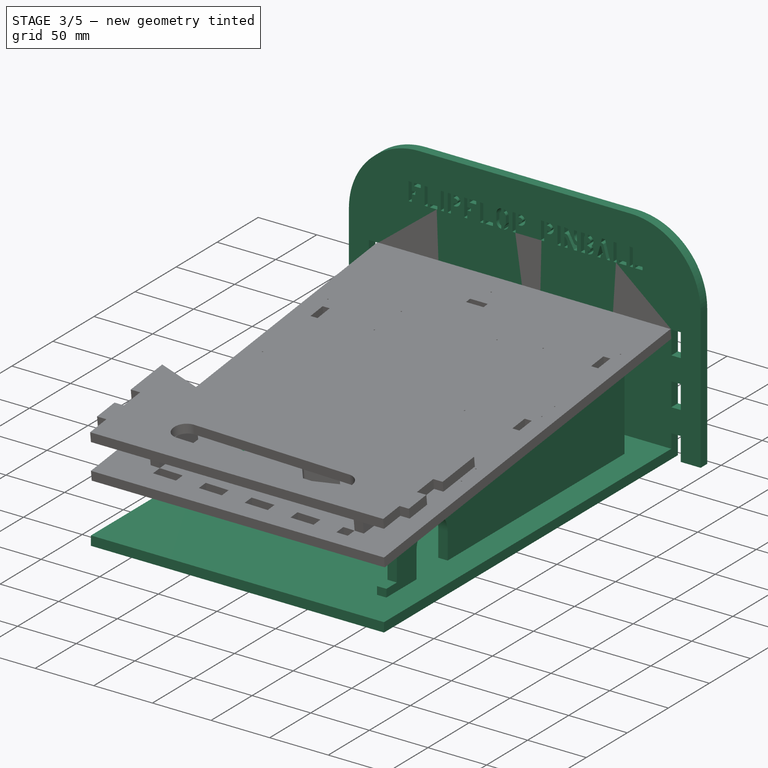
[diagram: stage 3 of 5 — iso view after this stage's code; geometry added in this stage tinted green]
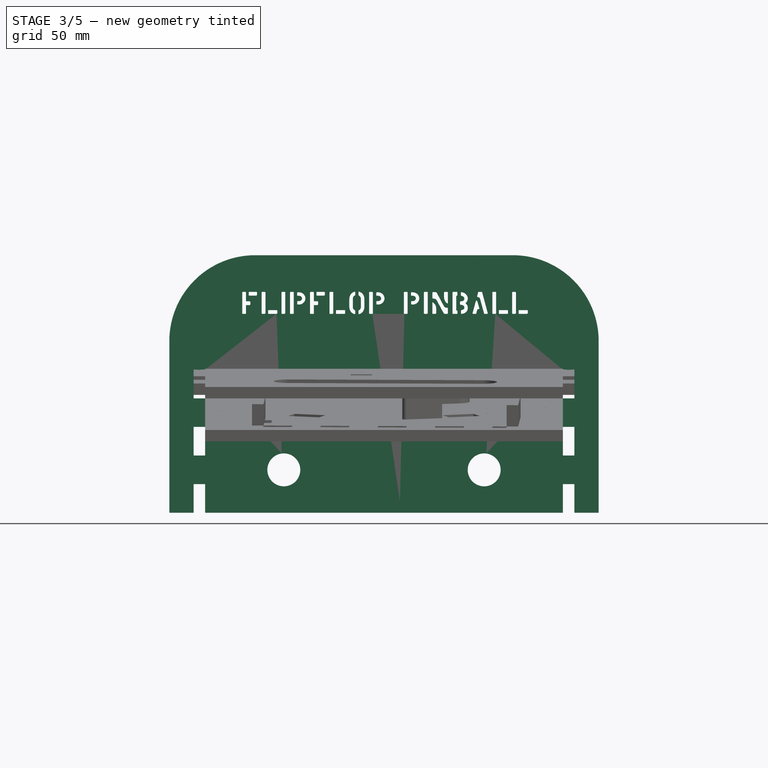
[diagram: stage 3 of 5 — front view after this stage's code; geometry added in this stage tinted green]
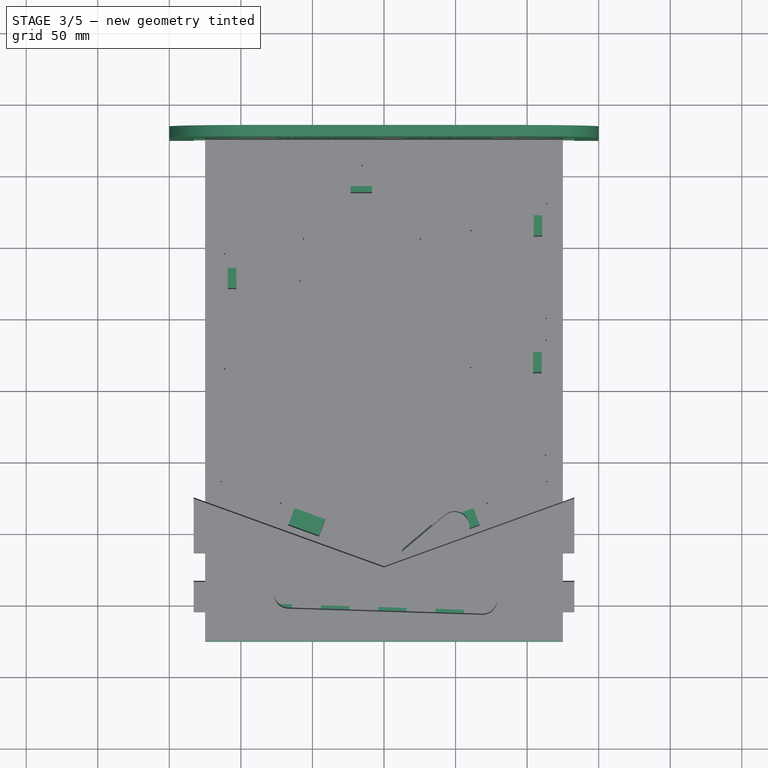
[diagram: stage 3 of 5 — top view after this stage's code; geometry added in this stage tinted green]
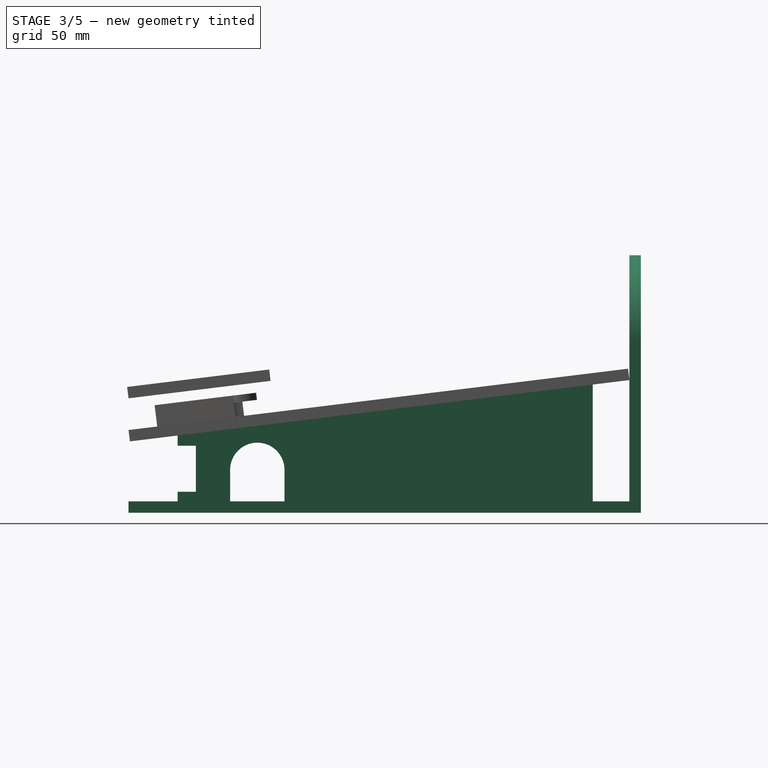
[diagram: stage 3 of 5 — right view after this stage's code; geometry added in this stage tinted green]
FEATURE [Spreadsheet::Sheet] Spreadsheet  label="Var"
  cells = A1='Input Dimensions; D1='Helper Variables; A2='MDF Thickness; B2(MdfThickness)=8; D2='Top Height; E2(TopHeight)==BaseDepth / cos(LidAngle); A3='Base Width; B3(BaseWidth)=250; A4='Base Depth; B4(BaseDepth)=350; A5='Lid Angle; B5(LidAngle)=7; A6='Front Height; B6(FrontHeight)=80; A7='Lid Sunken Depth; B7(LidSunkenDepth)==30 / cos(LidAngle); A8='Lip Length; B8(LipLength)=10; A9='Back Height; B9(BackHeight)=180; A10='Back Width; B10(BackWidth)==BaseWidth * 1.2; A11='Cover Height; B11(CoverHeight)=100; A12='Support Inner Offset; B12(SupportInnerOffset)=30; A13='Servo Length; B13(ServoLength)=23; A14='Servo Width; B14(ServoWidth)=13; A15='Screw Diameter; B15(ScrewDiameter)=1; A16='Big  Switch Length; B16(BigSwitchLength)=20; A17='Big Switch Height; B17(BigSwitchHeight)=13; A18='Big Switch Lever Length; B18(BigSwitchLeverLength)=55; A19='Ramp Length; B19(RampLength)=170; A20='Sensor Length; B20(SensorLength)=45; A21='Sensor Height; B21(SensorHeight)=20; A22='Sensor Width; B22(SensorWidth)=14
FEATURE [Sketcher::SketchObject] Sketch
  FullyConstrained = true
  MapMode = 5
  Support = -> [XY_Plane]
  expr: Constraints[10] = <<Var>>.BaseDepth
  expr: Constraints[9] = <<Var>>.BaseWidth
  sketch-geometry (4):
    g0: LineSegment StartX=-125 StartY=-175 StartZ=0 EndX=125 EndY=-175 EndZ=0
    g1: LineSegment StartX=125 StartY=-175 StartZ=0 EndX=125 EndY=175 EndZ=0
    g2: LineSegment StartX=125 StartY=175 StartZ=0 EndX=-125 EndY=175 EndZ=0
    g3: LineSegment StartX=-125 StartY=175 StartZ=0 EndX=-125 EndY=-175 EndZ=0
  constraints (11):
    c: Coincident(g0,g1)
    c: Coincident(g1,g2)
    c: Coincident(g2,g3)
    c: Coincident(g3,g0)
    c: Horizontal(g0)
    c: Horizontal(g2)
    c: Vertical(g1)
    c: Vertical(g3)
    c: Symmetric(g1,g0,g-1)
    c: DistanceX(g2,g2) = 250
    c: DistanceY(g1,g1) = 350
FEATURE [PartDesign::Pad] Pad
  Direction = (0,0,1)
  Length = 8
  Length2 = 10
  Profile = -> Sketch
  ReferenceAxis = -> Sketch [N_Axis]
  Type = 0
  expr: Length = <<Var>>.MdfThickness
FEATURE [PartDesign::Plane] DatumPlane003
  AttachmentOffset = pos=(0,0,175) rot=(0,0,1;0rad)
  Length = 60
  MapMode = 5
  Placement = pos=(0,175,3.89e-14) rot=(0,0.707107,0.707107;3.14159rad)
  ResizeMode = 0
  Support = -> [XZ_Plane004]
  Width = 60
  expr: .AttachmentOffset.Base.z = <<Var>>.BaseDepth / 2
FEATURE [Sketcher::SketchObject] Sketch004
  FullyConstrained = true
  MapMode = 5
  Placement = pos=(0,175,3.89e-14) rot=(0,0.707107,0.707107;3.14159rad)
  Support = -> [DatumPlane003]
  expr: Constraints[11] = <<Var>>.BackHeight
  expr: Constraints[12] = 0.6 * <<Var>>.BackWidth
  expr: Constraints[1] = <<Var>>.BackWidth / 2
  expr: Constraints[2] = <<Var>>.BackWidth / 2
  sketch-geometry (8):
    g0: LineSegment StartX=-150 StartY=0 StartZ=0 EndX=-150 EndY=120 EndZ=0
    g1: LineSegment StartX=150 StartY=0 StartZ=0 EndX=150 EndY=120 EndZ=0
    g2: ArcOfCircle CenterX=-90 CenterY=120 CenterZ=0 NormalX=0 NormalY=0 NormalZ=1 AngleXU=0 Radius=60 StartAngle=1.5708 EndAngle=3.14159
    g3: ArcOfCircle CenterX=90 CenterY=120 CenterZ=0 NormalX=0 NormalY=0 NormalZ=1 AngleXU=0 Radius=60 StartAngle=8e-16 EndAngle=1.5708
    g4: LineSegment StartX=-90 StartY=180 StartZ=0 EndX=90 EndY=180 EndZ=0
    g5: LineSegment StartX=-150 StartY=0 StartZ=0 EndX=150 EndY=0 EndZ=0
    g6: Circle CenterX=-70 CenterY=30 CenterZ=0 NormalX=0 NormalY=0 NormalZ=1 AngleXU=0 Radius=11.5
    g7: Circle CenterX=70 CenterY=30 CenterZ=0 NormalX=0 NormalY=0 NormalZ=1 AngleXU=0 Radius=11.5
  constraints (22):
    c: PointOnObject(g0,g-1)
    c: DistanceX(g0,g-1) = 150
    c: DistanceX(g-1,g1) = 150
    c: Vertical(g0)
    c: Vertical(g1)
    c: Equal(g3,g2)
    c: Horizontal(g4)
    c: Tangent(g4,g2) = 1.5708
    c: Tangent(g4,g3) = 1.5708
    c: Tangent(g2,g0) = 1.5708
    c: Tangent(g3,g1) = -1.5708
    c: DistanceY(g1,g3) = 180
    c: DistanceX(g4,g4) = 180
    c: Coincident(g5,g0)
    c: Coincident(g5,g1)
    c: Horizontal(g5)
    c: Diameter(g6) = 23
    c: Diameter(g7) = 23
    c: DistanceX(g0,g6) = 80
    c: DistanceX(g7,g1) = 80
    c: DistanceY(g1,g7) = 30
    c: DistanceY(g0,g6) = 30
FEATURE [PartDesign::Pad] Pad004
  Direction = (0,1,2e-16)
  Length = 8
  Length2 = 10
  Placement = pos=(0,175,3.9e-14) rot=(0,0.707107,0.707107;3.14159rad)
  Profile = -> Sketch004
  ReferenceAxis = -> Sketch004 [N_Axis]
  Type = 0
  expr: Length = <<Var>>.MdfThickness
FEATURE [Part::Part2DObjectPython] ShapeString002  # Draft 2D object (typed FeaturePython)
  FontFile = <userpath>/Code/flip-flop-pinball/cad/Marsh Stencil Regular.otf
  MakeFace = true
  Placement = pos=(-100.714,166,138.994) rot=(1,0,0;1.5708rad)
  Size = 8
  String = FlipFlop Pinball
  Tracking = 0
FEATURE [PartDesign::Pocket] Pocket002
  BaseFeature = -> Pad004
  Direction = (0,1,-2e-16)
  Length = 5
  Length2 = 5
  Placement = pos=(0,175,3.9e-14) rot=(0,0.707107,0.707107;3.14159rad)
  Profile = -> ShapeString002
  ReferenceAxis = -> ShapeString002 [N_Axis]
  Type = 1
FEATURE [PartDesign::ShapeBinder] ShapeBinder004
  Placement = pos=(0,175,3.9e-14) rot=(0,0.707107,0.707107;3.14159rad)
  Support = -> [Sketch010]
  TraceSupport = false
FEATURE [PartDesign::Pocket] Pocket007
  BaseFeature = -> Pocket002
  Direction = (0,-1,0)
  Length = 5
  Length2 = 5
  Placement = pos=(0,175,3.9e-14) rot=(0,0.707107,0.707107;3.14159rad)
  Profile = -> ShapeBinder004
  Reversed = true
  Type = 1
FEATURE [PartDesign::ShapeBinder] ShapeBinder005
  Placement = pos=(0,175,3.9e-14) rot=(0,0.707107,0.707107;3.14159rad)
  Support = -> [Sketch011]
  TraceSupport = false
FEATURE [PartDesign::Pocket] Pocket008
  BaseFeature = -> Pocket007
  Direction = (0,-1,-3e-16)
  Length = 5
  Length2 = 5
  Placement = pos=(0,175,3.9e-14) rot=(0,0.707107,0.707107;3.14159rad)
  Profile = -> ShapeBinder005
  Reversed = true
  Type = 1
FEATURE [PartDesign::Mirrored] Mirrored003
  BaseFeature = -> Pocket008
  MirrorPlane = -> YZ_Plane004
  Originals = -> [Pocket008]
  Placement = pos=(0,175,3.9e-14) rot=(0,0.707107,0.707107;3.14159rad)
FEATURE [PartDesign::Body] Body004  label="Back"
  Group = -> [DatumPlane003,Sketch004,Pad004,ShapeString002,Pocket002,ShapeBinder004,Pocket007,ShapeBinder005,Pocket008,Mirrored003]
  Origin = -> Origin004
  Tip = -> Mirrored003
FEATURE [PartDesign::Plane] DatumPlane011
  AttachmentOffset = pos=(0,0,71.262) rot=(1,0,0;0.122173rad)
  Length = 310.225
  MapMode = 5
  Placement = pos=(0,0,71.262) rot=(1,0,0;0.122173rad)
  ResizeMode = 0
  Support = -> [XY_Plane006]
  Width = 422.934
  expr: .AttachmentOffset.Base.z = <<Var>>.FrontHeight + tan(<<Var>>.LidAngle) * <<Var>>.BaseDepth / 2 - <<Var>>.LidSunkenDepth
  expr: .AttachmentOffset.Rotation.Roll = <<Var>>.LidAngle
FEATURE [PartDesign::Plane] DatumPlane012
  AttachmentOffset = pos=(0,0,95) rot=(0,0,1;0rad)
  Length = 326.589
  MapMode = 5
  Placement = pos=(-95,2.11e-14,-2.11e-14) rot=(-0.57735,0.57735,0.57735;4.18879rad)
  ResizeMode = 0
  Support = -> [YZ_Plane007]
  Width = 151.073
  expr: .AttachmentOffset.Base.z = <<Var>>.BaseWidth / 2 - <<Var>>.SupportInnerOffset
FEATURE [PartDesign::ShapeBinder] ShapeBinder006
  Placement = pos=(-125,2.8e-14,-2.8e-14) rot=(0.57735,-0.57735,-0.57735;2.0944rad)
  Support = -> [Sketch001]
  TraceSupport = false
FEATURE [Sketcher::SketchObject] Sketch013
  ExternalGeometry = -> [ShapeBinder006]
  FullyConstrained = false
  MapMode = 5
  Placement = pos=(-95,2.11e-14,-2.11e-14) rot=(-0.57735,0.57735,0.57735;4.18879rad)
  Support = -> [DatumPlane012]
  expr: Constraints[10] = <<Var>>.LidAngle
  expr: Constraints[11] = <<Var>>.MdfThickness
  expr: Constraints[17] = <<Var>>.BaseDepth / 2
  expr: Constraints[20] = <<Var>>.LidSunkenDepth
  expr: Constraints[23] = <<Var>>.FrontHeight
  sketch-geometry (14):
    g0: LineSegment StartX=-149.39 StartY=8 StartZ=0 EndX=-149.39 EndY=89.6048 EndZ=0
    g1: LineSegment StartX=-149.39 StartY=89.6048 StartZ=0 EndX=140.73 EndY=53.9825 EndZ=0
    g2: LineSegment StartX=140.73 StartY=8 StartZ=0 EndX=104 EndY=8 EndZ=0
    g3: LineSegment StartX=104 StartY=8 StartZ=0 EndX=104 EndY=30 EndZ=0
    g4: ArcOfCircle CenterX=85 CenterY=30 CenterZ=0 NormalX=0 NormalY=0 NormalZ=1 AngleXU=0 Radius=19 StartAngle=0 EndAngle=3.14159
    g5: LineSegment StartX=-149.39 StartY=8 StartZ=0 EndX=66 EndY=8 EndZ=0
    g6: LineSegment StartX=66 StartY=8 StartZ=0 EndX=66 EndY=30 EndZ=0
    g7: LineSegment StartX=175 StartY=0 StartZ=0 EndX=175 EndY=80 EndZ=0
    g8: LineSegment StartX=175 StartY=80 StartZ=0 EndX=175 EndY=49.7747 EndZ=0
    g9: LineSegment StartX=140.73 StartY=53.9825 StartZ=0 EndX=140.73 EndY=46.8527 EndZ=0
    g10: LineSegment StartX=140.73 StartY=46.8527 StartZ=0 EndX=127.913 EndY=46.8527 EndZ=0
    g11: LineSegment StartX=127.913 StartY=46.8527 StartZ=0 EndX=127.913 EndY=14.7101 EndZ=0
    g12: LineSegment StartX=127.913 StartY=14.7101 StartZ=0 EndX=140.73 EndY=14.7101 EndZ=0
    g13: LineSegment StartX=140.73 StartY=14.7101 StartZ=0 EndX=140.73 EndY=8 EndZ=0
  constraints (39):
    c: Vertical(g0)
    c: Coincident(g1,g0)
    c: Coincident(g3,g2)
    c: Vertical(g3)
    c: Horizontal(g2)
    c: Tangent(g4,g3) = -1.5708
    c: Coincident(g5,g0)
    c: Coincident(g6,g5)
    c: Coincident(g6,g4)
    c: Vertical(g6)
    c: Angle(g1,g5) = 0.122173
    c: DistanceY(g-1,g2) = 8
    c: Coincident(g-3,g4)
    c: Equal(g6,g3)
    c: DistanceX(g4,g3) = 19
    c: Parallel(g5,g2)
    c: Vertical(g7)
    c: DistanceX(g-1,g7) = 175
    c: Coincident(g8,g7)
    c: PointOnObject(g8,g7)
    c: DistanceY(g8,g7) = 30.2253
    c: PointOnObject(g8,g1)
    c: PointOnObject(g2,g5)
    c: DistanceY(g7,g7) = 80
    c: DistanceY(g7,g-1) = 0
    c: Coincident(g9,g1)
    c: Vertical(g9)
    c: Coincident(g10,g9)
    c: Horizontal(g10)
    c: Coincident(g11,g10)
    c: Vertical(g11)
    c: Coincident(g12,g11)
    c: Coincident(g13,g12)
    c: Coincident(g13,g2)
    c: Vertical(g13)
    c: PointOnObject(g12,g9)
    c: Horizontal(g12)
    c: DistanceX(g0,g-1) = 149.39
    c: DistanceX(g-1,g2) = 140.73
FEATURE [PartDesign::Pad] Pad013
  Direction = (-1,4e-16,-2e-16)
  Length = 8
  Length2 = 10
  Placement = pos=(-95,2.1e-14,-2.1e-14) rot=(0.57735,-0.57735,-0.57735;2.0944rad)
  Profile = -> Sketch013
  ReferenceAxis = -> Sketch013 [N_Axis]
  Type = 0
  expr: Length = <<Var>>.MdfThickness
FEATURE [PartDesign::Plane] DatumPlane013
  AttachmentOffset = pos=(0,0,8) rot=(0,0,1;0rad)
  Length = 166.541
  MapMode = 5
  Placement = pos=(0,0,8) rot=(0,0,1;0rad)
  ResizeMode = 0
  Support = -> [XY_Plane007]
  Width = 328.661
  expr: .AttachmentOffset.Base.z = <<Var>>.MdfThickness
FEATURE [Sketcher::SketchObject] Sketch014
  ExternalGeometry = -> [Pad013]
  FullyConstrained = false
  MapMode = 5
  Placement = pos=(0,0,8) rot=(0,0,1;0rad)
  Support = -> [DatumPlane013]
  expr: Constraints[9] = <<Var>>.MdfThickness
  sketch-geometry (29):
    g0: LineSegment StartX=-103 StartY=149.39 StartZ=0 EndX=-95 EndY=149.39 EndZ=0
    g1: LineSegment StartX=-95 StartY=149.39 StartZ=0 EndX=-95 EndY=129.39 EndZ=0
    g2: LineSegment StartX=-95 StartY=129.39 StartZ=0 EndX=-103 EndY=129.39 EndZ=0
    g3: LineSegment StartX=-103 StartY=129.39 StartZ=0 EndX=-103 EndY=149.39 EndZ=0
    g4: LineSegment StartX=-103 StartY=109.408 StartZ=0 EndX=-95 EndY=109.408 EndZ=0
    g5: LineSegment StartX=-95 StartY=109.408 StartZ=0 EndX=-95 EndY=89.4083 EndZ=0
    g6: LineSegment StartX=-95 StartY=89.4083 StartZ=0 EndX=-103 EndY=89.4083 EndZ=0
    g7: LineSegment StartX=-103 StartY=89.4083 StartZ=0 EndX=-103 EndY=109.408 EndZ=0
    g8: LineSegment StartX=-103 StartY=149.39 StartZ=0 EndX=-103 EndY=109.408 EndZ=0
    g9: LineSegment StartX=-103 StartY=69.4266 StartZ=0 EndX=-95 EndY=69.4266 EndZ=0
    g10: LineSegment StartX=-95 StartY=69.4266 StartZ=0 EndX=-95 EndY=49.4266 EndZ=0
    g11: LineSegment StartX=-95 StartY=49.4266 StartZ=0 EndX=-103 EndY=49.4266 EndZ=0
    g12: LineSegment StartX=-103 StartY=49.4266 StartZ=0 EndX=-103 EndY=69.4266 EndZ=0
    g13: LineSegment StartX=-103 StartY=109.408 StartZ=0 EndX=-103 EndY=69.4266 EndZ=0
    g14: LineSegment StartX=-103 StartY=29.4449 StartZ=0 EndX=-95 EndY=29.4449 EndZ=0
    g15: LineSegment StartX=-95 StartY=29.4449 StartZ=0 EndX=-95 EndY=9.44489 EndZ=0
    g16: LineSegment StartX=-95 StartY=9.44489 StartZ=0 EndX=-103 EndY=9.44489 EndZ=0
    g17: LineSegment StartX=-103 StartY=9.44489 StartZ=0 EndX=-103 EndY=29.4449 EndZ=0
    g18: LineSegment StartX=-103 StartY=69.4266 StartZ=0 EndX=-103 EndY=29.4449 EndZ=0
    g19: LineSegment StartX=-103 StartY=-10.5368 StartZ=0 EndX=-95 EndY=-10.5368 EndZ=0
    g20: LineSegment StartX=-95 StartY=-10.5368 StartZ=0 EndX=-95 EndY=-30.5368 EndZ=0
    g21: LineSegment StartX=-95 StartY=-30.5368 StartZ=0 EndX=-103 EndY=-30.5368 EndZ=0
    g22: LineSegment StartX=-103 StartY=-30.5368 StartZ=0 EndX=-103 EndY=-10.5368 EndZ=0
    g23: LineSegment StartX=-103 StartY=29.4449 StartZ=0 EndX=-103 EndY=-10.5368 EndZ=0
    g24: LineSegment StartX=-103 StartY=-10.5368 StartZ=0 EndX=-103 EndY=-50.5185 EndZ=0
    g25: LineSegment StartX=-103 StartY=-112.315 StartZ=0 EndX=-95 EndY=-112.315 EndZ=0
    g26: LineSegment StartX=-95 StartY=-112.315 StartZ=0 EndX=-95 EndY=-132.315 EndZ=0
    g27: LineSegment StartX=-95 StartY=-132.315 StartZ=0 EndX=-103 EndY=-132.315 EndZ=0
    g28: LineSegment StartX=-103 StartY=-132.315 StartZ=0 EndX=-103 EndY=-112.315 EndZ=0
  constraints (81):
    c: Coincident(g0,g1)
    c: Coincident(g1,g2)
    c: Coincident(g2,g3)
    c: Coincident(g3,g0)
    c: Horizontal(g0)
    c: Horizontal(g2)
    c: Vertical(g1)
    c: Vertical(g3)
    c: Coincident(g0,g-3)
    c: DistanceX(g0,g0) = 8
    c: DistanceY(g3,g3) = 20
    c: Coincident(g4,g5)
    c: Coincident(g5,g6)
    c: Coincident(g6,g7)
    c: Coincident(g7,g4)
    c: Horizontal(g4)
    c: Horizontal(g6)
    c: Vertical(g5)
    c: Vertical(g7)
    c: Equal(g0,g4) = 8
    c: Equal(g3,g7) = 20
    c: Coincident(g0,g8)
    c: Coincident(g4,g8)
    c: Distance(g8) = 39.9817
    c: Angle(g8) = -1.5708
    c: Coincident(g9,g10)
    c: Coincident(g10,g11)
    c: Coincident(g11,g12)
    c: Coincident(g12,g9)
    c: Horizontal(g9)
    c: Horizontal(g11)
    c: Vertical(g10)
    c: Vertical(g12)
    c: Equal(g0,g9) = 8
    c: Equal(g3,g12) = 20
    c: Coincident(g4,g13)
    c: Coincident(g9,g13)
    c: Equal(g8,g13)
    c: Parallel(g13,g8)
    c: Coincident(g14,g15)
    c: Coincident(g15,g16)
    c: Coincident(g16,g17)
    c: Coincident(g17,g14)
    c: Horizontal(g14)
    c: Horizontal(g16)
    c: Vertical(g15)
    c: Vertical(g17)
    c: Equal(g0,g14) = 8
    c: Equal(g3,g17) = 20
    c: Coincident(g9,g18)
    c: Coincident(g14,g18)
    c: Equal(g8,g18)
    c: Parallel(g18,g8)
    c: Coincident(g19,g20)
    c: Coincident(g20,g21)
    c: Coincident(g21,g22)
    c: Coincident(g22,g19)
    c: Horizontal(g19)
    c: Horizontal(g21)
    c: Vertical(g20)
    c: Vertical(g22)
    c: Equal(g0,g19) = 8
    c: Equal(g3,g22) = 20
    c: Coincident(g14,g23)
    c: Coincident(g19,g23)
    c: Equal(g8,g23)
    c: Parallel(g23,g8)
    c: Coincident(g19,g24)
    c: Equal(g8,g24)
    c: Parallel(g24,g8)
    c: Coincident(g25,g26)
    c: Coincident(g26,g27)
    c: Coincident(g27,g28)
    c: Coincident(g28,g25)
    c: Horizontal(g25)
    c: Horizontal(g27)
    c: Vertical(g26)
    c: Vertical(g28)
    c: Equal(g0,g25) = 8
    c: Equal(g3,g28) = 20
    c: PointOnObject(g25,g20)
FEATURE [PartDesign::Pad] Pad014
  BaseFeature = -> Pad013
  Direction = (0,0,1)
  Length = 8
  Length2 = 10
  Placement = pos=(-95,2.1e-14,-2.1e-14) rot=(0.57735,-0.57735,-0.57735;2.0944rad)
  Profile = -> Sketch014
  ReferenceAxis = -> Sketch014 [N_Axis]
  Refine = true
  Reversed = true
  Type = 0
  expr: Length = <<Var>>.MdfThickness
FEATURE [PartDesign::Body] Body007  label="Support"
  Group = -> [DatumPlane012,Sketch013,ShapeBinder006,Pad013,DatumPlane013,Sketch014,Pad014]
  Origin = -> Origin007
  Tip = -> Pad014
FEATURE [Part::Mirroring] Part__Mirroring001  label="Support (Mirror #2)"
  Base = (1.14441e-05,4.33,44.8024)
  Normal = (1,0,-1.19209e-07)
  Source = -> Body007
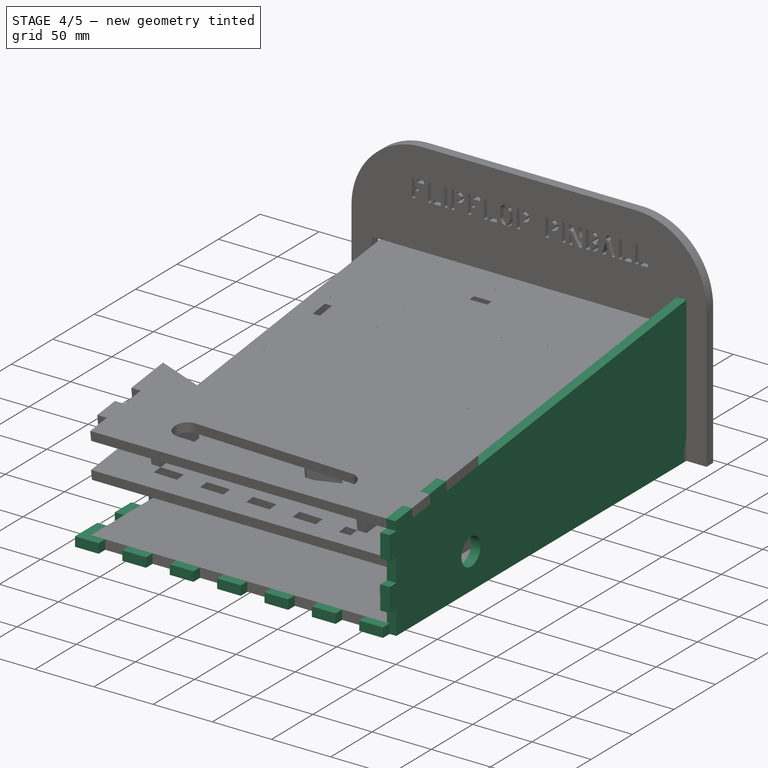
[diagram: stage 4 of 5 — iso view after this stage's code; geometry added in this stage tinted green]
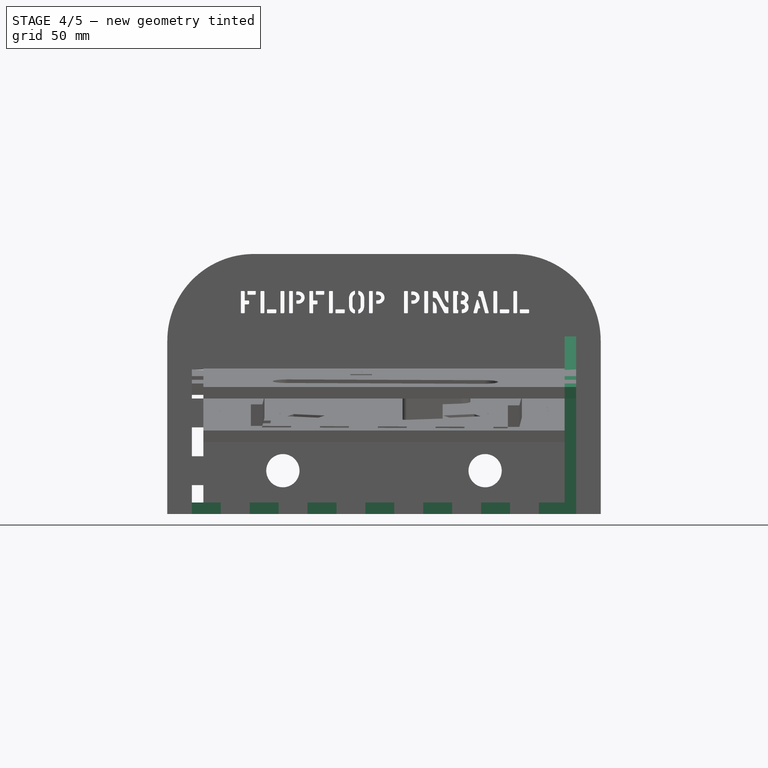
[diagram: stage 4 of 5 — front view after this stage's code; geometry added in this stage tinted green]
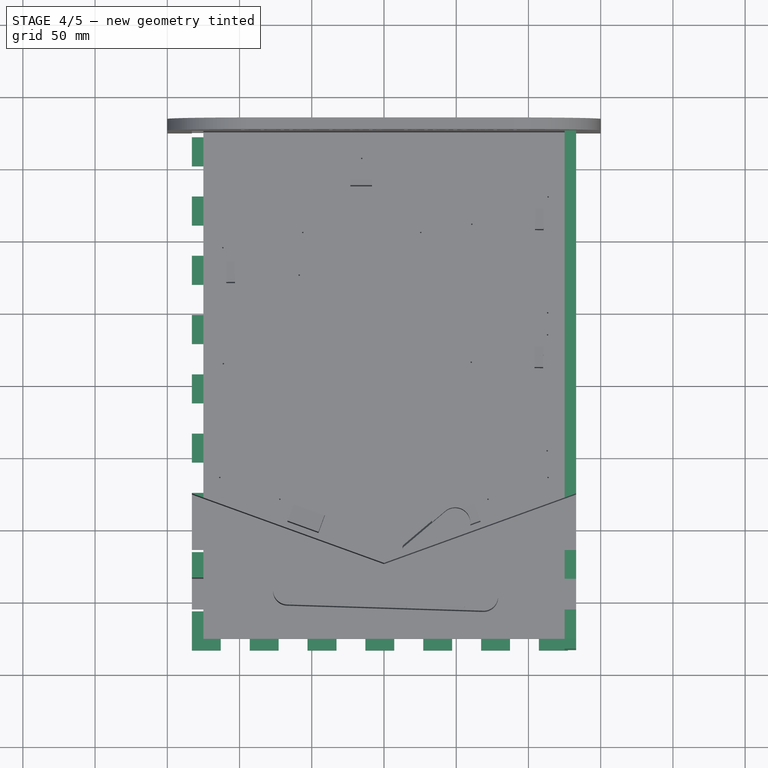
[diagram: stage 4 of 5 — top view after this stage's code; geometry added in this stage tinted green]
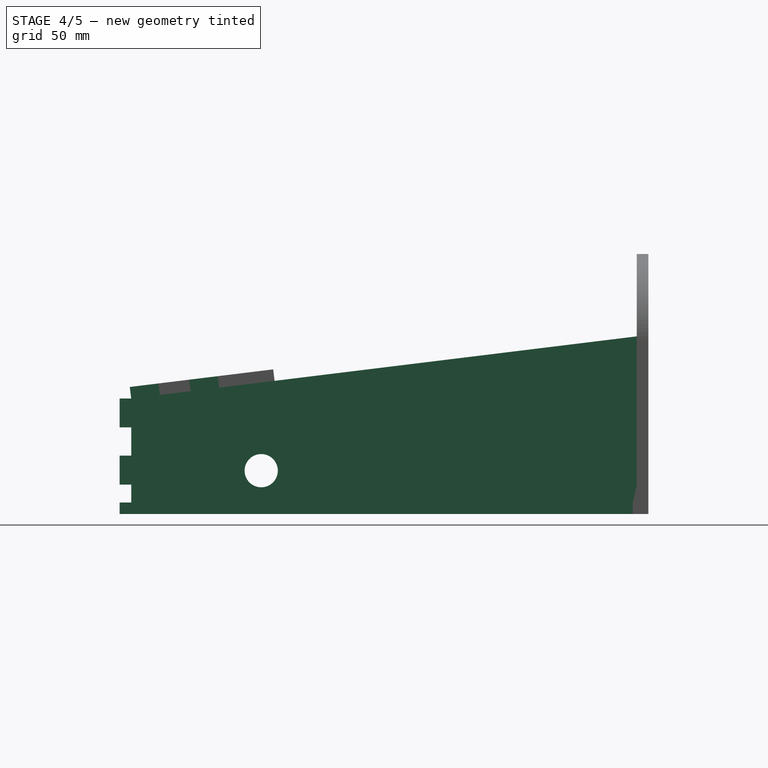
[diagram: stage 4 of 5 — right view after this stage's code; geometry added in this stage tinted green]
FEATURE [PartDesign::Plane] DatumPlane
  AttachmentOffset = pos=(0,0,125) rot=(0,0,1;0rad)
  Length = 60
  MapMode = 5
  Placement = pos=(-125,2.78e-14,-2.78e-14) rot=(-0.57735,0.57735,0.57735;4.18879rad)
  ResizeMode = 0
  Support = -> [YZ_Plane001]
  Width = 60
  expr: .AttachmentOffset.Base.z = <<Var>>.BaseWidth / 2
FEATURE [Sketcher::SketchObject] Sketch001
  FullyConstrained = true
  MapMode = 5
  Placement = pos=(-125,2.78e-14,-2.78e-14) rot=(-0.57735,0.57735,0.57735;4.18879rad)
  Support = -> [DatumPlane]
  expr: Constraints[1] = <<Var>>.BaseDepth
  expr: Constraints[6] = <<Var>>.LidAngle
  expr: Constraints[7] = <<Var>>.FrontHeight
  sketch-geometry (5):
    g0: LineSegment StartX=175 StartY=0 StartZ=0 EndX=-175 EndY=0 EndZ=0
    g1: LineSegment StartX=-175 StartY=122.975 StartZ=0 EndX=175 EndY=80 EndZ=0
    g2: LineSegment StartX=175 StartY=0 StartZ=0 EndX=175 EndY=80 EndZ=0
    g3: LineSegment StartX=-175 StartY=0 StartZ=0 EndX=-175 EndY=122.975 EndZ=0
    g4: Circle CenterX=85 CenterY=30 CenterZ=0 NormalX=0 NormalY=0 NormalZ=1 AngleXU=0 Radius=11.5
  constraints (14):
    c: PointOnObject(g-1,g0)
    c: Distance(g0) = 350
    c: Symmetric(g0,g0,g-2)
    c: Coincident(g2,g0)
    c: Coincident(g2,g1)
    c: Vertical(g2)
    c: Angle(g1,g0) = 0.122173
    c: Distance(g2) = 80
    c: Coincident(g3,g0)
    c: Vertical(g3)
    c: Diameter(g4) = 23
    c: DistanceY(g-1,g4) = 30
    c: DistanceX(g4,g0) = 90
    c: Coincident(g1,g3)
FEATURE [PartDesign::Pad] Pad001
  Direction = (-1,4e-16,-2e-16)
  Length = 8
  Length2 = 10
  Placement = pos=(-125,2.8e-14,-2.8e-14) rot=(0.57735,-0.57735,-0.57735;2.0944rad)
  Profile = -> Sketch001
  ReferenceAxis = -> Sketch001 [N_Axis]
  Type = 0
  expr: Length = <<Var>>.MdfThickness
FEATURE [PartDesign::Plane] DatumPlane005
  AttachmentOffset = pos=(0,0,125) rot=(0,0,1;0rad)
  Length = 60
  MapMode = 5
  Placement = pos=(-125,2.78e-14,-2.78e-14) rot=(-0.57735,0.57735,0.57735;4.18879rad)
  ResizeMode = 0
  Support = -> [YZ_Plane]
  Width = 60
  expr: .AttachmentOffset.Base.z = <<Var>>.BaseWidth / 2
FEATURE [Sketcher::SketchObject] Sketch006
  ExternalGeometry = -> [Pad]
  FullyConstrained = false
  MapMode = 5
  Placement = pos=(-125,2.78e-14,-2.78e-14) rot=(-0.57735,0.57735,0.57735;4.18879rad)
  Support = -> [DatumPlane005]
  sketch-geometry (44):
    g0: LineSegment StartX=-172.234 StartY=8 StartZ=0 EndX=-152.234 EndY=8 EndZ=0
    g1: LineSegment StartX=-152.234 StartY=8 StartZ=0 EndX=-152.234 EndY=6.22e-14 EndZ=0
    g2: LineSegment StartX=-152.234 StartY=6.22e-14 StartZ=0 EndX=-172.234 EndY=6.22e-14 EndZ=0
    g3: LineSegment StartX=-172.234 StartY=6.22e-14 StartZ=0 EndX=-172.234 EndY=8 EndZ=0
    g4: LineSegment StartX=-131.21 StartY=8 StartZ=0 EndX=-111.21 EndY=8 EndZ=0
    g5: LineSegment StartX=-111.21 StartY=8 StartZ=0 EndX=-111.21 EndY=-7.585e-13 EndZ=0
    g6: LineSegment StartX=-111.21 StartY=-7.585e-13 StartZ=0 EndX=-131.21 EndY=-7.585e-13 EndZ=0
    g7: LineSegment StartX=-131.21 StartY=-7.585e-13 StartZ=0 EndX=-131.21 EndY=8 EndZ=0
    g8: LineSegment StartX=-172.234 StartY=8 StartZ=0 EndX=-131.21 EndY=8 EndZ=0
    g9: LineSegment StartX=-90.1854 StartY=8 StartZ=0 EndX=-70.1854 EndY=8 EndZ=0
    g10: LineSegment StartX=-70.1854 StartY=8 StartZ=0 EndX=-70.1854 EndY=-3.375e-13 EndZ=0
    g11: LineSegment StartX=-70.1854 StartY=-3.375e-13 StartZ=0 EndX=-90.1854 EndY=-3.375e-13 EndZ=0
    g12: LineSegment StartX=-90.1854 StartY=-3.375e-13 StartZ=0 EndX=-90.1854 EndY=8 EndZ=0
    g13: LineSegment StartX=-131.21 StartY=8 StartZ=0 EndX=-90.1854 EndY=8 EndZ=0
    g14: LineSegment StartX=-49.1611 StartY=8 StartZ=0 EndX=-29.1611 EndY=8 EndZ=0
    g15: LineSegment StartX=-29.1611 StartY=8 StartZ=0 EndX=-29.1611 EndY=-3.34e-13 EndZ=0
    g16: LineSegment StartX=-29.1611 StartY=-3.34e-13 StartZ=0 EndX=-49.1611 EndY=-3.34e-13 EndZ=0
    g17: LineSegment StartX=-49.1611 StartY=-3.34e-13 StartZ=0 EndX=-49.1611 EndY=8 EndZ=0
    g18: LineSegment StartX=-90.1854 StartY=8 StartZ=0 EndX=-49.1611 EndY=8 EndZ=0
    g19: LineSegment StartX=-8.13678 StartY=8 StartZ=0 EndX=11.8632 EndY=8 EndZ=0
    g20: LineSegment StartX=11.8632 StartY=8 StartZ=0 EndX=11.8632 EndY=-3.34e-13 EndZ=0
    g21: LineSegment StartX=11.8632 StartY=-3.34e-13 StartZ=0 EndX=-8.13678 EndY=-3.34e-13 EndZ=0
    g22: LineSegment StartX=-8.13678 StartY=-3.34e-13 StartZ=0 EndX=-8.13678 EndY=8 EndZ=0
    g23: LineSegment StartX=-49.1611 StartY=8 StartZ=0 EndX=-8.13678 EndY=8 EndZ=0
    g24: LineSegment StartX=32.8875 StartY=8 StartZ=0 EndX=52.8875 EndY=8 EndZ=0
    g25: LineSegment StartX=52.8875 StartY=8 StartZ=0 EndX=52.8875 EndY=-3.34e-13 EndZ=0
    g26: LineSegment StartX=52.8875 StartY=-3.34e-13 StartZ=0 EndX=32.8875 EndY=-3.34e-13 EndZ=0
    g27: LineSegment StartX=32.8875 StartY=-3.34e-13 StartZ=0 EndX=32.8875 EndY=8 EndZ=0
    g28: LineSegment StartX=-8.13678 StartY=8 StartZ=0 EndX=32.8875 EndY=8 EndZ=0
    g29: LineSegment StartX=73.9119 StartY=8 StartZ=0 EndX=93.9119 EndY=8 EndZ=0
    g30: LineSegment StartX=93.9119 StartY=8 StartZ=0 EndX=93.9119 EndY=-3.34e-13 EndZ=0
    g31: LineSegment StartX=93.9119 StartY=-3.34e-13 StartZ=0 EndX=73.9119 EndY=-3.34e-13 EndZ=0
    g32: LineSegment StartX=73.9119 StartY=-3.34e-13 StartZ=0 EndX=73.9119 EndY=8 EndZ=0
    g33: LineSegment StartX=32.8875 StartY=8 StartZ=0 EndX=73.9119 EndY=8 EndZ=0
    g34: LineSegment StartX=114.936 StartY=8 StartZ=0 EndX=134.936 EndY=8 EndZ=0
    g35: LineSegment StartX=134.936 StartY=8 StartZ=0 EndX=134.936 EndY=-3.34e-13 EndZ=0
    g36: LineSegment StartX=134.936 StartY=-3.34e-13 StartZ=0 EndX=114.936 EndY=-3.34e-13 EndZ=0
    g37: LineSegment StartX=114.936 StartY=-3.34e-13 StartZ=0 EndX=114.936 EndY=8 EndZ=0
    g38: LineSegment StartX=73.9119 StartY=8 StartZ=0 EndX=114.936 EndY=8 EndZ=0
    g39: LineSegment StartX=156.005 StartY=0 StartZ=0 EndX=156.005 EndY=8 EndZ=0
    g40: LineSegment StartX=114.936 StartY=8 StartZ=0 EndX=155.961 EndY=8 EndZ=0
    g41: LineSegment StartX=175 StartY=8 StartZ=0 EndX=175 EndY=0 EndZ=0
    g42: LineSegment StartX=156.005 StartY=0 StartZ=0 EndX=175 EndY=0 EndZ=0
    g43: LineSegment StartX=156.005 StartY=8 StartZ=0 EndX=175 EndY=8 EndZ=0
  constraints (114):
    c: Coincident(g0,g1)
    c: Coincident(g1,g2)
    c: Coincident(g2,g3)
    c: Coincident(g3,g0)
    c: Horizontal(g0)
    c: Horizontal(g2)
    c: Vertical(g1)
    c: Vertical(g3)
    c: PointOnObject(g0,g-3)
    c: PointOnObject(g1,g-4)
    c: DistanceX(g2,g2) = 20
    c: Coincident(g4,g5)
    c: Coincident(g5,g6)
    c: Coincident(g6,g7)
    c: Coincident(g7,g4)
    c: Horizontal(g4)
    c: Horizontal(g6)
    c: Vertical(g5)
    c: Vertical(g7)
    c: Equal(g2,g6) = 20
    c: Coincident(g0,g8)
    c: Coincident(g4,g8)
    c: Distance(g8) = 41.0243
    c: Angle(g8) = 0
    c: Coincident(g9,g10)
    c: Coincident(g10,g11)
    c: Coincident(g11,g12)
    c: Coincident(g12,g9)
    c: Horizontal(g9)
    c: Horizontal(g11)
    c: Vertical(g10)
    c: Vertical(g12)
    c: Equal(g2,g11) = 20
    c: Coincident(g4,g13)
    c: Coincident(g9,g13)
    c: Equal(g8,g13)
    c: Parallel(g13,g8)
    c: Coincident(g14,g15)
    c: Coincident(g15,g16)
    c: Coincident(g16,g17)
    c: Coincident(g17,g14)
    c: Horizontal(g14)
    c: Horizontal(g16)
    c: Vertical(g15)
    c: Vertical(g17)
    c: Equal(g2,g16) = 20
    c: Coincident(g9,g18)
    c: Coincident(g14,g18)
    c: Equal(g8,g18)
    c: Parallel(g18,g8)
    c: Coincident(g19,g20)
    c: Coincident(g20,g21)
    c: Coincident(g21,g22)
    c: Coincident(g22,g19)
    c: Horizontal(g19)
    c: Horizontal(g21)
    c: Vertical(g20)
    c: Vertical(g22)
    c: Equal(g2,g21) = 20
    c: Coincident(g14,g23)
    c: Coincident(g19,g23)
    c: Equal(g8,g23)
    c: Parallel(g23,g8)
    c: Coincident(g24,g25)
    c: Coincident(g25,g26)
    c: Coincident(g26,g27)
    c: Coincident(g27,g24)
    c: Horizontal(g24)
    c: Horizontal(g26)
    c: Vertical(g25)
    c: Vertical(g27)
    c: Equal(g2,g26) = 20
    c: Coincident(g19,g28)
    c: Coincident(g24,g28)
    c: Equal(g8,g28)
    c: Parallel(g28,g8)
    c: Coincident(g29,g30)
    c: Coincident(g30,g31)
    c: Coincident(g31,g32)
    c: Coincident(g32,g29)
    c: Horizontal(g29)
    c: Horizontal(g31)
    c: Vertical(g30)
    c: Vertical(g32)
    c: Equal(g2,g31) = 20
    c: Coincident(g24,g33)
    c: Coincident(g29,g33)
    c: Equal(g8,g33)
    c: Parallel(g33,g8)
    c: Coincident(g34,g35)
    c: Coincident(g35,g36)
    c: Coincident(g36,g37)
    c: Coincident(g37,g34)
    c: Horizontal(g34)
    c: Horizontal(g36)
    c: Vertical(g35)
    c: Vertical(g37)
    c: Equal(g2,g36) = 20
    c: Coincident(g29,g38)
    c: Coincident(g34,g38)
    c: Equal(g8,g38)
    c: Parallel(g38,g8)
    c: Vertical(g39)
    c: Coincident(g34,g40)
    c: Equal(g8,g40)
    c: Parallel(g40,g8)
    c: Coincident(g41,g-3)
    c: Coincident(g41,g-4)
    c: Coincident(g42,g39)
    c: Coincident(g42,g41)
    c: Horizontal(g42)
    c: Coincident(g43,g39)
    c: Coincident(g43,g41)
    c: Horizontal(g43)
FEATURE [PartDesign::Pad] Pad006
  BaseFeature = -> Pad
  Direction = (-1,4e-16,-2e-16)
  Length = 8
  Length2 = 10
  Profile = -> Sketch006
  ReferenceAxis = -> Sketch006 [N_Axis]
  Type = 0
  expr: Length = <<Var>>.MdfThickness
FEATURE [PartDesign::Mirrored] Mirrored
  BaseFeature = -> Pad006
  MirrorPlane = -> YZ_Plane
  Originals = -> [Pad006]
FEATURE [PartDesign::ShapeBinder] ShapeBinder
  Placement = pos=(-125,2.8e-14,-2.8e-14) rot=(0.57735,-0.57735,-0.57735;2.0944rad)
  Support = -> [Sketch006]
  TraceSupport = false
FEATURE [PartDesign::Pocket] Pocket003
  BaseFeature = -> Pad001
  Direction = (-1,4e-16,0)
  Length = 5
  Length2 = 5
  Placement = pos=(-125,2.8e-14,-2.8e-14) rot=(0.57735,-0.57735,-0.57735;2.0944rad)
  Profile = -> ShapeBinder
  Type = 1
FEATURE [PartDesign::Plane] DatumPlane006
  AttachmentOffset = pos=(0,0,175) rot=(0,0,1;0rad)
  Length = 60
  MapMode = 5
  Placement = pos=(0,-175,-3.89e-14) rot=(1,0,0;1.5708rad)
  ResizeMode = 0
  Support = -> [XZ_Plane]
  Width = 60
  expr: .AttachmentOffset.Base.z = <<Var>>.BaseDepth / 2
FEATURE [Sketcher::SketchObject] Sketch007
  FullyConstrained = true
  MapMode = 5
  Placement = pos=(0,-175,-3.89e-14) rot=(1,0,0;1.5708rad)
  Support = -> [DatumPlane006]
  expr: Constraints[10] = <<Var>>.MdfThickness
  expr: Constraints[11] = 20
  expr: Constraints[9] = <<Var>>.BaseWidth / 2 + <<Var>>.MdfThickness
  sketch-geometry (34):
    g0: LineSegment StartX=-133 StartY=0 StartZ=0 EndX=-113 EndY=0 EndZ=0
    g1: LineSegment StartX=-113 StartY=0 StartZ=0 EndX=-113 EndY=8 EndZ=0
    g2: LineSegment StartX=-113 StartY=8 StartZ=0 EndX=-133 EndY=8 EndZ=0
    g3: LineSegment StartX=-133 StartY=8 StartZ=0 EndX=-133 EndY=0 EndZ=0
    g4: LineSegment StartX=-92.9594 StartY=9e-16 StartZ=0 EndX=-72.9594 EndY=9e-16 EndZ=0
    g5: LineSegment StartX=-72.9594 StartY=9e-16 StartZ=0 EndX=-72.9594 EndY=8 EndZ=0
    g6: LineSegment StartX=-72.9594 StartY=8 StartZ=0 EndX=-92.9594 EndY=8 EndZ=0
    g7: LineSegment StartX=-92.9594 StartY=8 StartZ=0 EndX=-92.9594 EndY=9e-16 EndZ=0
    g8: LineSegment StartX=-133 StartY=0 StartZ=0 EndX=-92.9594 EndY=9e-16 EndZ=0
    g9: LineSegment StartX=-52.9188 StartY=-5.3e-15 StartZ=0 EndX=-32.9188 EndY=-5.3e-15 EndZ=0
    g10: LineSegment StartX=-32.9188 StartY=-5.3e-15 StartZ=0 EndX=-32.9188 EndY=8 EndZ=0
    g11: LineSegment StartX=-32.9188 StartY=8 StartZ=0 EndX=-52.9188 EndY=8 EndZ=0
    g12: LineSegment StartX=-52.9188 StartY=8 StartZ=0 EndX=-52.9188 EndY=-5.3e-15 EndZ=0
    g13: LineSegment StartX=-92.9594 StartY=9e-16 StartZ=0 EndX=-52.9188 EndY=-5.3e-15 EndZ=0
    g14: LineSegment StartX=-12.8782 StartY=-6.2e-15 StartZ=0 EndX=7.12179 EndY=-6.2e-15 EndZ=0
    g15: LineSegment StartX=7.12179 StartY=-6.2e-15 StartZ=0 EndX=7.12179 EndY=8 EndZ=0
    g16: LineSegment StartX=7.12179 StartY=8 StartZ=0 EndX=-12.8782 EndY=8 EndZ=0
    g17: LineSegment StartX=-12.8782 StartY=8 StartZ=0 EndX=-12.8782 EndY=-6.2e-15 EndZ=0
    g18: LineSegment StartX=-52.9188 StartY=-5.3e-15 StartZ=0 EndX=-12.8782 EndY=-6.2e-15 EndZ=0
    g19: LineSegment StartX=27.1624 StartY=-6.2e-15 StartZ=0 EndX=47.1624 EndY=-6.2e-15 EndZ=0
    g20: LineSegment StartX=47.1624 StartY=-6.2e-15 StartZ=0 EndX=47.1624 EndY=8 EndZ=0
    g21: LineSegment StartX=47.1624 StartY=8 StartZ=0 EndX=27.1624 EndY=8 EndZ=0
    g22: LineSegment StartX=27.1624 StartY=8 StartZ=0 EndX=27.1624 EndY=-6.2e-15 EndZ=0
    g23: LineSegment StartX=-12.8782 StartY=-6.2e-15 StartZ=0 EndX=27.1624 EndY=-6.2e-15 EndZ=0
    g24: LineSegment StartX=67.203 StartY=-7.1e-15 StartZ=0 EndX=87.203 EndY=-7.1e-15 EndZ=0
    g25: LineSegment StartX=87.203 StartY=-7.1e-15 StartZ=0 EndX=87.203 EndY=8 EndZ=0
    g26: LineSegment StartX=87.203 StartY=8 StartZ=0 EndX=67.203 EndY=8 EndZ=0
    g27: LineSegment StartX=67.203 StartY=8 StartZ=0 EndX=67.203 EndY=-7.1e-15 EndZ=0
    g28: LineSegment StartX=27.1624 StartY=-6.2e-15 StartZ=0 EndX=67.203 EndY=-7.1e-15 EndZ=0
    g29: LineSegment StartX=107.244 StartY=-8e-15 StartZ=0 EndX=127.244 EndY=-8e-15 EndZ=0
    g30: LineSegment StartX=127.244 StartY=-8e-15 StartZ=0 EndX=127.244 EndY=8 EndZ=0
    g31: LineSegment StartX=127.244 StartY=8 StartZ=0 EndX=107.244 EndY=8 EndZ=0
    g32: LineSegment StartX=107.244 StartY=8 StartZ=0 EndX=107.244 EndY=-8e-15 EndZ=0
    g33: LineSegment StartX=67.203 StartY=-7.1e-15 StartZ=0 EndX=107.244 EndY=-8e-15 EndZ=0
  constraints (96):
    c: Coincident(g0,g1)
    c: Coincident(g1,g2)
    c: Coincident(g2,g3)
    c: Coincident(g3,g0)
    c: Horizontal(g0)
    c: Horizontal(g2)
    c: Vertical(g1)
    c: Vertical(g3)
    c: PointOnObject(g0,g-1)
    c: DistanceX(g0,g-1) = 133
    c: DistanceY(g3,g3) = 8
    c: DistanceX(g2,g2) = 20
    c: Coincident(g4,g5)
    c: Coincident(g5,g6)
    c: Coincident(g6,g7)
    c: Coincident(g7,g4)
    c: Horizontal(g4)
    c: Horizontal(g6)
    c: Vertical(g5)
    c: Vertical(g7)
    c: Equal(g3,g7) = 9
    c: Equal(g2,g6) = 20
    c: Coincident(g0,g8)
    c: Coincident(g4,g8)
    c: Distance(g8) = 40.0406
    c: Angle(g8) = 0
    c: Coincident(g9,g10)
    c: Coincident(g10,g11)
    c: Coincident(g11,g12)
    c: Coincident(g12,g9)
    c: Horizontal(g9)
    c: Horizontal(g11)
    c: Vertical(g10)
    c: Vertical(g12)
    c: Equal(g3,g12) = 9
    c: Equal(g2,g11) = 20
    c: Coincident(g4,g13)
    c: Coincident(g9,g13)
    c: Equal(g8,g13)
    c: Parallel(g13,g8)
    c: Coincident(g14,g15)
    c: Coincident(g15,g16)
    c: Coincident(g16,g17)
    c: Coincident(g17,g14)
    c: Horizontal(g14)
    c: Horizontal(g16)
    c: Vertical(g15)
    c: Vertical(g17)
    c: Equal(g3,g17) = 9
    c: Equal(g2,g16) = 20
    c: Coincident(g9,g18)
    c: Coincident(g14,g18)
    c: Equal(g8,g18)
    c: Parallel(g18,g8)
    c: Coincident(g19,g20)
    c: Coincident(g20,g21)
    c: Coincident(g21,g22)
    c: Coincident(g22,g19)
    c: Horizontal(g19)
    c: Horizontal(g21)
    c: Vertical(g20)
    c: Vertical(g22)
    c: Equal(g3,g22) = 9
    c: Equal(g2,g21) = 20
    c: Coincident(g14,g23)
    c: Coincident(g19,g23)
    c: Equal(g8,g23)
    c: Parallel(g23,g8)
    c: Coincident(g24,g25)
    c: Coincident(g25,g26)
    c: Coincident(g26,g27)
    c: Coincident(g27,g24)
    c: Horizontal(g24)
    c: Horizontal(g26)
    c: Vertical(g25)
    c: Vertical(g27)
    c: Equal(g3,g27) = 9
    c: Equal(g2,g26) = 20
    c: Coincident(g19,g28)
    c: Coincident(g24,g28)
    c: Equal(g8,g28)
    c: Parallel(g28,g8)
    c: Coincident(g29,g30)
    c: Coincident(g30,g31)
    c: Coincident(g31,g32)
    c: Coincident(g32,g29)
    c: Horizontal(g29)
    c: Horizontal(g31)
    c: Vertical(g30)
    c: Vertical(g32)
    c: Equal(g3,g32) = 9
    c: Equal(g2,g31) = 20
    c: Coincident(g24,g33)
    c: Coincident(g29,g33)
    c: Equal(g8,g33)
    c: Parallel(g33,g8)
FEATURE [PartDesign::Pad] Pad007
  BaseFeature = -> Mirrored
  Direction = (0,-1,-2e-16)
  Length = 8
  Length2 = 10
  Profile = -> Sketch007
  ReferenceAxis = -> Sketch007 [N_Axis]
  Type = 0
  expr: Length = <<Var>>.MdfThickness
FEATURE [PartDesign::Plane] DatumPlane007
  AttachmentOffset = pos=(0,0,175) rot=(0,0,1;0rad)
  Length = 60
  MapMode = 5
  Placement = pos=(0,-175,-3.89e-14) rot=(1,0,0;1.5708rad)
  ResizeMode = 0
  Support = -> [XZ_Plane001]
  Width = 60
  expr: .AttachmentOffset.Base.z = <<Var>>.BaseDepth / 2
FEATURE [Sketcher::SketchObject] Sketch008
  FullyConstrained = true
  MapMode = 5
  Placement = pos=(0,-175,-3.89e-14) rot=(1,0,0;1.5708rad)
  Support = -> [DatumPlane007]
  expr: Constraints[10] = <<Var>>.MdfThickness
  expr: Constraints[25] = <<Var>>.FrontHeight
  expr: Constraints[8] = <<Var>>.BaseWidth / 2 + <<Var>>.MdfThickness
  sketch-geometry (9):
    g0: LineSegment StartX=-133 StartY=80 StartZ=0 EndX=-125 EndY=80 EndZ=0
    g1: LineSegment StartX=-125 StartY=80 StartZ=0 EndX=-125 EndY=60 EndZ=0
    g2: LineSegment StartX=-125 StartY=60 StartZ=0 EndX=-133 EndY=60 EndZ=0
    g3: LineSegment StartX=-133 StartY=60 StartZ=0 EndX=-133 EndY=80 EndZ=0
    g4: LineSegment StartX=-133 StartY=40.3821 StartZ=0 EndX=-125 EndY=40.3821 EndZ=0
    g5: LineSegment StartX=-125 StartY=40.3821 StartZ=0 EndX=-125 EndY=20.3821 EndZ=0
    g6: LineSegment StartX=-125 StartY=20.3821 StartZ=0 EndX=-133 EndY=20.3821 EndZ=0
    g7: LineSegment StartX=-133 StartY=20.3821 StartZ=0 EndX=-133 EndY=40.3821 EndZ=0
    g8: LineSegment StartX=-133 StartY=80 StartZ=0 EndX=-133 EndY=40.3821 EndZ=0
  constraints (26):
    c: Coincident(g0,g1)
    c: Coincident(g1,g2)
    c: Coincident(g2,g3)
    c: Coincident(g3,g0)
    c: Horizontal(g0)
    c: Horizontal(g2)
    c: Vertical(g1)
    c: Vertical(g3)
    c: DistanceX(g0,g-1) = 133
    c: DistanceY(g3,g3) = 20
    c: DistanceX(g2,g2) = 8
    c: Coincident(g4,g5)
    c: Coincident(g5,g6)
    c: Coincident(g6,g7)
    c: Coincident(g7,g4)
    c: Horizontal(g4)
    c: Horizontal(g6)
    c: Vertical(g5)
    c: Vertical(g7)
    c: Equal(g3,g7) = 20
    c: Equal(g2,g6) = 9
    c: Coincident(g0,g8)
    c: Coincident(g4,g8)
    c: Distance(g8) = 39.6179
    c: Angle(g8) = -1.5708
    c: DistanceY(g-1,g0) = 80
FEATURE [PartDesign::Pad] Pad008
  BaseFeature = -> Pocket003
  Direction = (0,-1,-2e-16)
  Length = 8
  Length2 = 10
  Placement = pos=(-125,2.8e-14,-2.8e-14) rot=(0.57735,-0.57735,-0.57735;2.0944rad)
  Profile = -> Sketch008
  ReferenceAxis = -> Sketch008 [N_Axis]
  Type = 0
  expr: Length = <<Var>>.MdfThickness
FEATURE [PartDesign::Body] Body002  label="Front"
  Group = -> [DatumPlane001,Sketch002,Pad002,ShapeString001,ShapeString,Pocket,Pocket001,ShapeBinder001,Pocket004,ShapeBinder002,Pocket005,Mirrored001]
  Origin = -> Origin002
  Tip = -> Mirrored001
FEATURE [PartDesign::Plane] DatumPlane008
  AttachmentOffset = pos=(0,0,101.487) rot=(1,0,0;0.122173rad)
  Length = 60.5566
  MapMode = 5
  Placement = pos=(0,0,101.487) rot=(1,0,0;0.122173rad)
  ResizeMode = 0
  Support = -> [XY_Plane001]
  Width = 66.2774
  expr: .AttachmentOffset.Base.z = <<Var>>.FrontHeight + tan(<<Var>>.LidAngle) * <<Var>>.BaseDepth / 2
  expr: .AttachmentOffset.Rotation.Roll = <<Var>>.LidAngle
FEATURE [Sketcher::SketchObject] Sketch009
  FullyConstrained = false
  MapMode = 5
  Placement = pos=(0,0,101.487) rot=(1,0,0;0.122173rad)
  Support = -> [DatumPlane008]
  expr: Constraints[11] = <<Var>>.BaseWidth / 2
  expr: Constraints[8] = <<Var>>.TopHeight / 2
  expr: Constraints[9] = <<Var>>.MdfThickness
  sketch-geometry (9):
    g0: LineSegment StartX=-133 StartY=-176.314 StartZ=0 EndX=-125 EndY=-176.314 EndZ=0
    g1: LineSegment StartX=-125 StartY=-176.314 StartZ=0 EndX=-125 EndY=-156.314 EndZ=0
    g2: LineSegment StartX=-125 StartY=-156.314 StartZ=0 EndX=-133 EndY=-156.314 EndZ=0
    g3: LineSegment StartX=-133 StartY=-156.314 StartZ=0 EndX=-133 EndY=-176.314 EndZ=0
    g4: LineSegment StartX=-133 StartY=-134.917 StartZ=0 EndX=-125 EndY=-134.917 EndZ=0
    g5: LineSegment StartX=-125 StartY=-134.917 StartZ=0 EndX=-125 EndY=-114.917 EndZ=0
    g6: LineSegment StartX=-125 StartY=-114.917 StartZ=0 EndX=-133 EndY=-114.917 EndZ=0
    g7: LineSegment StartX=-133 StartY=-114.917 StartZ=0 EndX=-133 EndY=-134.917 EndZ=0
    g8: LineSegment StartX=-133 StartY=-176.314 StartZ=0 EndX=-133 EndY=-134.917 EndZ=0
  constraints (25):
    c: Coincident(g0,g1)
    c: Coincident(g1,g2)
    c: Coincident(g2,g3)
    c: Coincident(g3,g0)
    c: Horizontal(g0)
    c: Horizontal(g2)
    c: Vertical(g1)
    c: Vertical(g3)
    c: DistanceY(g0,g-1) = 176.314
    c: DistanceX(g0,g0) = 8
    c: DistanceY(g3,g3) = 20
    c: DistanceX(g0,g-1) = 125
    c: Coincident(g4,g5)
    c: Coincident(g5,g6)
    c: Coincident(g6,g7)
    c: Coincident(g7,g4)
    c: Horizontal(g4)
    c: Horizontal(g6)
    c: Vertical(g5)
    c: Vertical(g7)
    c: Equal(g0,g4) = 9
    c: Equal(g3,g7) = 20
    c: Coincident(g0,g8)
    c: Coincident(g4,g8)
    c: Angle(g8) = 1.5708
FEATURE [PartDesign::Pad] Pad009
  BaseFeature = -> Pad008
  Direction = (0,-0.121869,0.992546)
  Length = 8
  Length2 = 10
  Placement = pos=(-125,2.8e-14,-2.8e-14) rot=(0.57735,-0.57735,-0.57735;2.0944rad)
  Profile = -> Sketch009
  ReferenceAxis = -> Sketch009 [N_Axis]
  Type = 0
  expr: Length = <<Var>>.MdfThickness
FEATURE [PartDesign::Plane] DatumPlane010
  AttachmentOffset = pos=(0,0,175) rot=(0,0,1;0rad)
  Length = 60
  MapMode = 5
  Placement = pos=(0,175,3.89e-14) rot=(0,0.707107,0.707107;3.14159rad)
  ResizeMode = 0
  Support = -> [XZ_Plane001]
  Width = 60
  expr: .AttachmentOffset.Base.z = <<Var>>.BaseDepth / 2
FEATURE [Sketcher::SketchObject] Sketch011
  FullyConstrained = true
  MapMode = 5
  Placement = pos=(0,175,3.89e-14) rot=(0,0.707107,0.707107;3.14159rad)
  Support = -> [DatumPlane010]
  expr: Constraints[10] = <<Var>>.MdfThickness
  expr: Constraints[9] = <<Var>>.BaseWidth / 2
  sketch-geometry (14):
    g0: LineSegment StartX=125 StartY=0 StartZ=0 EndX=133 EndY=0 EndZ=0
    g1: LineSegment StartX=133 StartY=0 StartZ=0 EndX=133 EndY=20 EndZ=0
    g2: LineSegment StartX=133 StartY=20 StartZ=0 EndX=125 EndY=20 EndZ=0
    g3: LineSegment StartX=125 StartY=20 StartZ=0 EndX=125 EndY=0 EndZ=0
    g4: LineSegment StartX=125 StartY=40 StartZ=0 EndX=133 EndY=40 EndZ=0
    g5: LineSegment StartX=133 StartY=40 StartZ=0 EndX=133 EndY=60 EndZ=0
    g6: LineSegment StartX=133 StartY=60 StartZ=0 EndX=125 EndY=60 EndZ=0
    g7: LineSegment StartX=125 StartY=60 StartZ=0 EndX=125 EndY=40 EndZ=0
    g8: LineSegment StartX=125 StartY=0 StartZ=0 EndX=125 EndY=40 EndZ=0
    g9: LineSegment StartX=125 StartY=80 StartZ=0 EndX=133 EndY=80 EndZ=0
    g10: LineSegment StartX=133 StartY=80 StartZ=0 EndX=133 EndY=100 EndZ=0
    g11: LineSegment StartX=133 StartY=100 StartZ=0 EndX=125 EndY=100 EndZ=0
    g12: LineSegment StartX=125 StartY=100 StartZ=0 EndX=125 EndY=80 EndZ=0
    g13: LineSegment StartX=125 StartY=40 StartZ=0 EndX=125 EndY=80 EndZ=0
  constraints (40):
    c: Coincident(g0,g1)
    c: Coincident(g1,g2)
    c: Coincident(g2,g3)
    c: Coincident(g3,g0)
    c: Horizontal(g0)
    c: Horizontal(g2)
    c: Vertical(g1)
    c: Vertical(g3)
    c: PointOnObject(g0,g-1)
    c: DistanceX(g-1,g0) = 125
    c: DistanceX(g0,g0) = 8
    c: DistanceY(g1,g1) = 20
    c: Coincident(g4,g5)
    c: Coincident(g5,g6)
    c: Coincident(g6,g7)
    c: Coincident(g7,g4)
    c: Horizontal(g4)
    c: Horizontal(g6)
    c: Vertical(g5)
    c: Vertical(g7)
    c: Equal(g0,g4) = 9
    c: Equal(g1,g5) = 20
    c: Coincident(g0,g8)
    c: Coincident(g4,g8)
    c: Distance(g8) = 40
    c: Angle(g8) = 1.5708
    c: Coincident(g9,g10)
    c: Coincident(g10,g11)
    c: Coincident(g11,g12)
    c: Coincident(g12,g9)
    c: Horizontal(g9)
    c: Horizontal(g11)
    c: Vertical(g10)
    c: Vertical(g12)
    c: Equal(g0,g9) = 9
    c: Equal(g1,g10) = 20
    c: Coincident(g4,g13)
    c: Coincident(g9,g13)
    c: Equal(g8,g13)
    c: Parallel(g13,g8)
FEATURE [PartDesign::Pad] Pad011
  BaseFeature = -> Pad009
  Direction = (0,1,2e-16)
  Length = 8
  Length2 = 10
  Placement = pos=(-125,2.8e-14,-2.8e-14) rot=(0.57735,-0.57735,-0.57735;2.0944rad)
  Profile = -> Sketch011
  ReferenceAxis = -> Sketch011 [N_Axis]
  Refine = true
  Type = 0
  expr: Length = <<Var>>.MdfThickness
FEATURE [PartDesign::Body] Body001  label="Left"
  Group = -> [DatumPlane,Sketch001,Pad001,ShapeBinder,Pocket003,DatumPlane007,Sketch008,Pad008,DatumPlane008,Sketch009,Pad009,DatumPlane010,Sketch011,Pad011]
  Origin = -> Origin001
  Tip = -> Pad011
FEATURE [Part::Mirroring] Part__Mirroring  label="Right"
  Base = (3.8147e-06,-4.26e-14,61.4873)
  Normal = (1,0,-1.19209e-07)
  Source = -> Body001
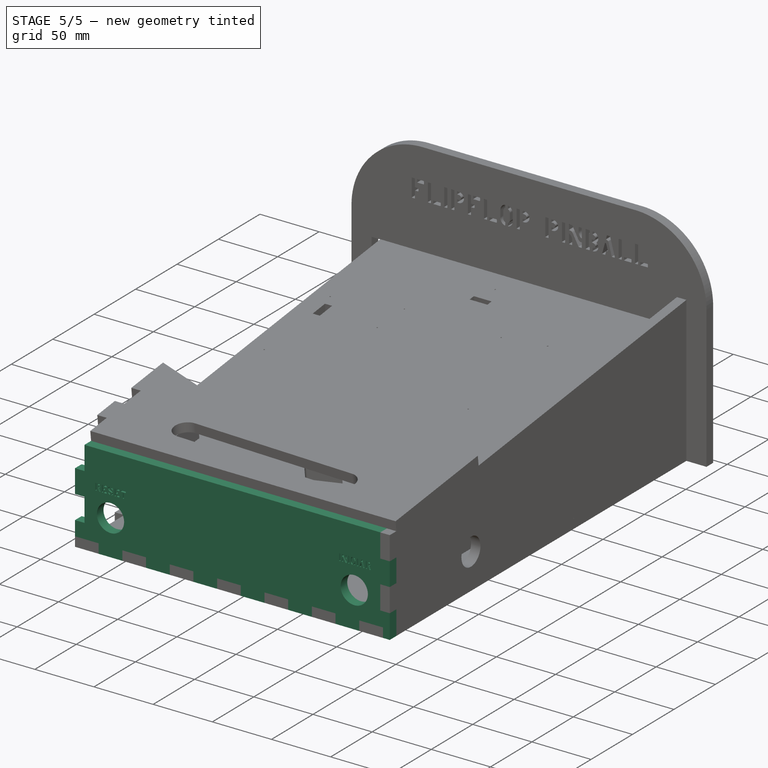
[diagram: stage 5 of 5 — iso view after this stage's code; geometry added in this stage tinted green]
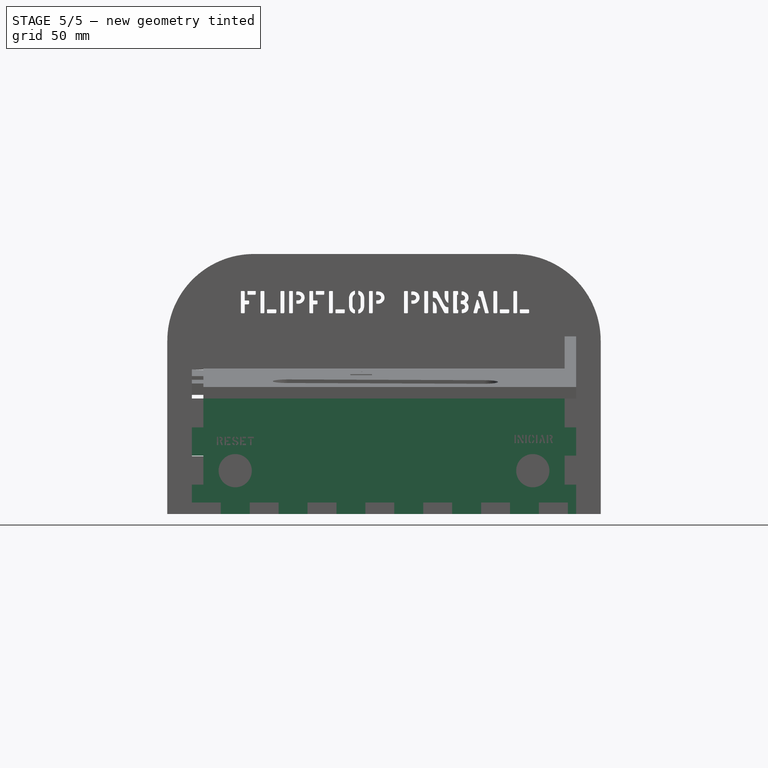
[diagram: stage 5 of 5 — front view after this stage's code; geometry added in this stage tinted green]
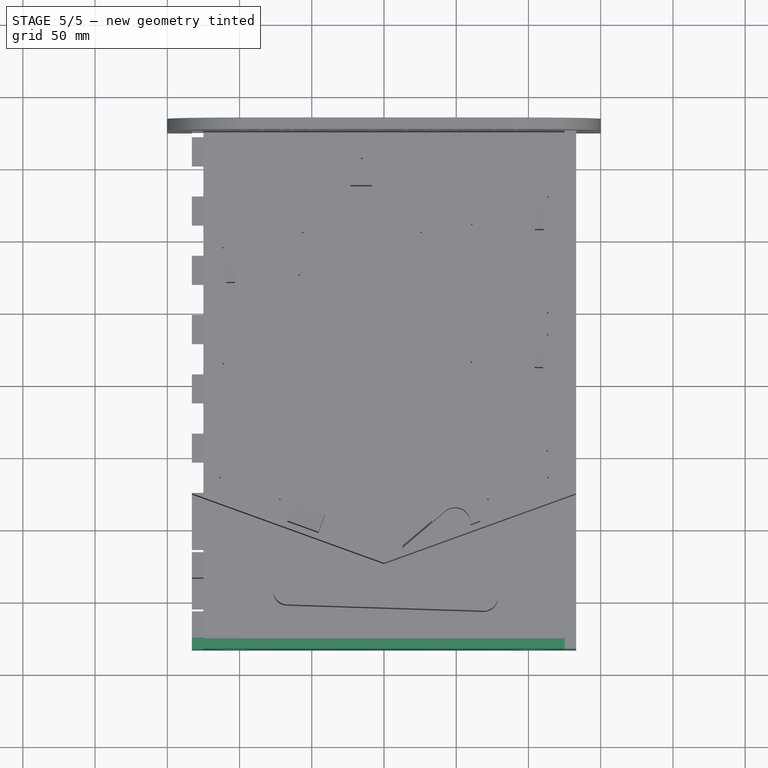
[diagram: stage 5 of 5 — top view after this stage's code; geometry added in this stage tinted green]
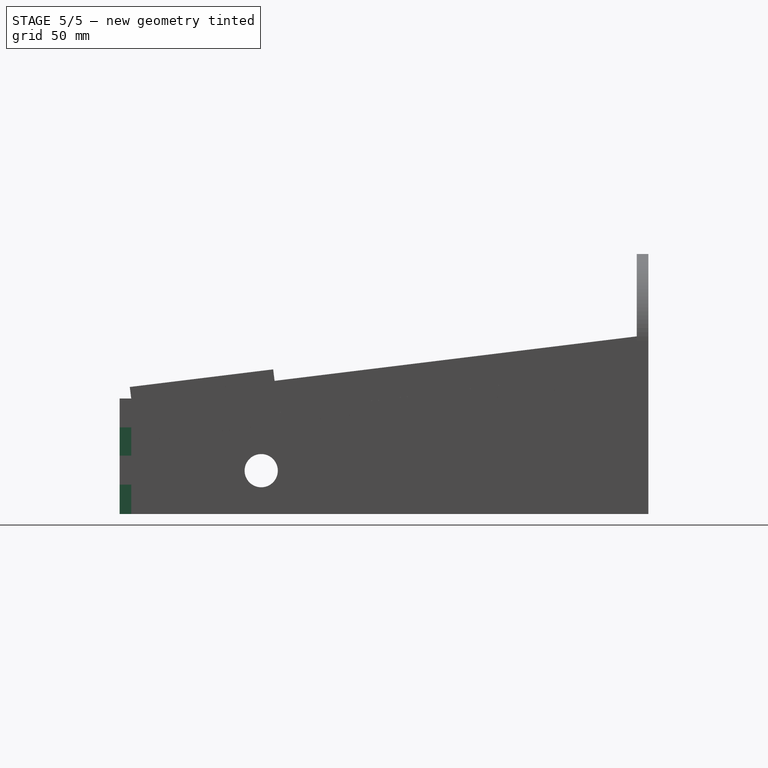
[diagram: stage 5 of 5 — right view after this stage's code; geometry added in this stage tinted green]
FEATURE [PartDesign::Plane] DatumPlane001
  AttachmentOffset = pos=(0,0,175) rot=(0,0,1;0rad)
  Length = 60
  MapMode = 5
  Placement = pos=(0,-175,-3.89e-14) rot=(1,0,0;1.5708rad)
  ResizeMode = 0
  Support = -> [XZ_Plane002]
  Width = 60
  expr: .AttachmentOffset.Base.z = <<Var>>.BaseDepth / 2
FEATURE [Sketcher::SketchObject] Sketch002
  FullyConstrained = true
  MapMode = 5
  Placement = pos=(0,-175,-3.89e-14) rot=(1,0,0;1.5708rad)
  Support = -> [DatumPlane001]
  expr: Constraints[11] = <<Var>>.FrontHeight
  expr: Constraints[14] = 30
  expr: Constraints[2] = <<Var>>.BaseWidth / 2 + <<Var>>.MdfThickness
  expr: Constraints[3] = <<Var>>.BaseWidth / 2 + <<Var>>.MdfThickness
  sketch-geometry (6):
    g0: LineSegment StartX=-133 StartY=0 StartZ=0 EndX=133 EndY=0 EndZ=0
    g1: LineSegment StartX=-133 StartY=0 StartZ=0 EndX=-133 EndY=80 EndZ=0
    g2: LineSegment StartX=-133 StartY=80 StartZ=0 EndX=133 EndY=80 EndZ=0
    g3: LineSegment StartX=133 StartY=80 StartZ=0 EndX=133 EndY=0 EndZ=0
    g4: Circle CenterX=103 CenterY=30 CenterZ=0 NormalX=0 NormalY=0 NormalZ=1 AngleXU=0 Radius=11.5
    g5: Circle CenterX=-103 CenterY=30 CenterZ=0 NormalX=0 NormalY=0 NormalZ=1 AngleXU=0 Radius=11.5
  constraints (18):
    c: PointOnObject(g0,g-1)
    c: PointOnObject(g0,g-1)
    c: DistanceX(g-1,g0) = 133
    c: DistanceX(g0,g-1) = 133
    c: Coincident(g1,g0)
    c: Vertical(g1)
    c: Coincident(g2,g1)
    c: Horizontal(g2)
    c: Coincident(g3,g2)
    c: Coincident(g3,g0)
    c: Vertical(g3)
    c: DistanceY(g1,g1) = 80
    c: Diameter(g4) = 23
    c: Diameter(g5) = 23
    c: DistanceX(g0,g5) = 30
    c: DistanceX(g4,g0) = 30
    c: DistanceY(g-1,g5) = 30
    c: DistanceY(g-1,g4) = 30
FEATURE [PartDesign::Pad] Pad002
  Direction = (0,-1,-2e-16)
  Length = 8
  Length2 = 10
  Placement = pos=(0,-175,-3.9e-14) rot=(1,0,0;1.5708rad)
  Profile = -> Sketch002
  ReferenceAxis = -> Sketch002 [N_Axis]
  Type = 0
  expr: Length = <<Var>>.MdfThickness
FEATURE [Part::Part2DObjectPython] ShapeString  # Draft 2D object (typed FeaturePython)
  FontFile = <userpath>/Code/flip-flop-pinball/cad/Marsh Stencil Regular.otf
  MakeFace = true
  Placement = pos=(89.6879,-184,49.0504) rot=(1,0,0;1.5708rad)
  Size = 3
  String = iniciar
  Tracking = 0
FEATURE [Part::Part2DObjectPython] ShapeString001  # Draft 2D object (typed FeaturePython)
  FontFile = <userpath>/Code/flip-flop-pinball/cad/Marsh Stencil Regular.otf
  MakeFace = true
  Placement = pos=(-116.336,-184,47.6978) rot=(1,0,0;1.5708rad)
  Size = 3
  String = Reset
  Tracking = 0
FEATURE [PartDesign::Pocket] Pocket
  BaseFeature = -> Pad002
  Direction = (0,1,-2e-16)
  Length = 5
  Length2 = 5
  Placement = pos=(0,-175,-3.9e-14) rot=(1,0,0;1.5708rad)
  Profile = -> ShapeString001
  ReferenceAxis = -> ShapeString001 [N_Axis]
  Type = 1
FEATURE [PartDesign::Pocket] Pocket001
  BaseFeature = -> Pocket
  Direction = (0,1,-2e-16)
  Length = 5
  Length2 = 5
  Placement = pos=(0,-175,-3.9e-14) rot=(1,0,0;1.5708rad)
  Profile = -> ShapeString
  ReferenceAxis = -> ShapeString [N_Axis]
  Type = 1
FEATURE [PartDesign::ShapeBinder] ShapeBinder001
  Placement = pos=(0,-175,-3.9e-14) rot=(1,0,0;1.5708rad)
  Support = -> [Sketch007]
  TraceSupport = false
FEATURE [PartDesign::Pocket] Pocket004
  BaseFeature = -> Pocket001
  Direction = (0,-1,0)
  Length = 5
  Length2 = 5
  Placement = pos=(0,-175,-3.9e-14) rot=(1,0,0;1.5708rad)
  Profile = -> ShapeBinder001
  Type = 1
FEATURE [PartDesign::ShapeBinder] ShapeBinder002
  Placement = pos=(0,-175,-3.9e-14) rot=(1,0,0;1.5708rad)
  Support = -> [Sketch008]
  TraceSupport = false
FEATURE [PartDesign::Pocket] Pocket005
  BaseFeature = -> Pocket004
  Direction = (0,-1,-4e-16)
  Length = 5
  Length2 = 5
  Placement = pos=(0,-175,-3.9e-14) rot=(1,0,0;1.5708rad)
  Profile = -> ShapeBinder002
  Type = 1
FEATURE [PartDesign::Mirrored] Mirrored001
  BaseFeature = -> Pocket005
  MirrorPlane = -> YZ_Plane002
  Originals = -> [Pocket005]
  Placement = pos=(0,-175,-3.9e-14) rot=(1,0,0;1.5708rad)
  Refine = true
FEATURE [PartDesign::Plane] DatumPlane009
  AttachmentOffset = pos=(0,0,175) rot=(0,0,1;0rad)
  Length = 60
  MapMode = 5
  Placement = pos=(0,175,3.89e-14) rot=(0,0.707107,0.707107;3.14159rad)
  ResizeMode = 0
  Support = -> [XZ_Plane]
  Width = 60
  expr: .AttachmentOffset.Base.z = <<Var>>.BaseDepth / 2
FEATURE [Sketcher::SketchObject] Sketch010
  FullyConstrained = false
  MapMode = 5
  Placement = pos=(0,175,3.89e-14) rot=(0,0.707107,0.707107;3.14159rad)
  Support = -> [DatumPlane009]
  expr: Constraints[9] = <<Var>>.MdfThickness
  sketch-geometry (29):
    g0: LineSegment StartX=-114.269 StartY=0 StartZ=0 EndX=-94.2691 EndY=0 EndZ=0
    g1: LineSegment StartX=-94.2691 StartY=0 StartZ=0 EndX=-94.2691 EndY=8 EndZ=0
    g2: LineSegment StartX=-94.2691 StartY=8 StartZ=0 EndX=-114.269 EndY=8 EndZ=0
    g3: LineSegment StartX=-114.269 StartY=8 StartZ=0 EndX=-114.269 EndY=0 EndZ=0
    g4: LineSegment StartX=-72.6991 StartY=1.88093e-10 StartZ=0 EndX=-52.6991 EndY=1.88093e-10 EndZ=0
    g5: LineSegment StartX=-52.6991 StartY=1.88093e-10 StartZ=0 EndX=-52.6991 EndY=8 EndZ=0
    g6: LineSegment StartX=-52.6991 StartY=8 StartZ=0 EndX=-72.6991 EndY=8 EndZ=0
    g7: LineSegment StartX=-72.6991 StartY=8 StartZ=0 EndX=-72.6991 EndY=1.88093e-10 EndZ=0
    g8: LineSegment StartX=-114.269 StartY=0 StartZ=0 EndX=-72.6991 EndY=1.88093e-10 EndZ=0
    g9: LineSegment StartX=-31.1291 StartY=2.7879e-10 StartZ=0 EndX=-11.1291 EndY=2.7879e-10 EndZ=0
    g10: LineSegment StartX=-11.1291 StartY=2.7879e-10 StartZ=0 EndX=-11.1291 EndY=8 EndZ=0
    g11: LineSegment StartX=-11.1291 StartY=8 StartZ=0 EndX=-31.1291 EndY=8 EndZ=0
    g12: LineSegment StartX=-31.1291 StartY=8 StartZ=0 EndX=-31.1291 EndY=2.7879e-10 EndZ=0
    g13: LineSegment StartX=-72.6991 StartY=1.88093e-10 StartZ=0 EndX=-31.1291 EndY=2.7879e-10 EndZ=0
    g14: LineSegment StartX=10.4409 StartY=2.72562e-10 StartZ=0 EndX=30.4409 EndY=2.72562e-10 EndZ=0
    g15: LineSegment StartX=30.4409 StartY=2.72562e-10 StartZ=0 EndX=30.4409 EndY=8 EndZ=0
    g16: LineSegment StartX=30.4409 StartY=8 StartZ=0 EndX=10.4409 EndY=8 EndZ=0
    g17: LineSegment StartX=10.4409 StartY=8 StartZ=0 EndX=10.4409 EndY=2.72562e-10 EndZ=0
    g18: LineSegment StartX=-31.1291 StartY=2.7879e-10 StartZ=0 EndX=10.4409 EndY=2.72562e-10 EndZ=0
    g19: LineSegment StartX=52.0109 StartY=2.71583e-10 StartZ=0 EndX=72.0109 EndY=2.71583e-10 EndZ=0
    g20: LineSegment StartX=72.0109 StartY=2.71583e-10 StartZ=0 EndX=72.0109 EndY=8 EndZ=0
    g21: LineSegment StartX=72.0109 StartY=8 StartZ=0 EndX=52.0109 EndY=8 EndZ=0
    g22: LineSegment StartX=52.0109 StartY=8 StartZ=0 EndX=52.0109 EndY=2.71583e-10 EndZ=0
    g23: LineSegment StartX=10.4409 StartY=2.72562e-10 StartZ=0 EndX=52.0109 EndY=2.71583e-10 EndZ=0
    g24: LineSegment StartX=93.5809 StartY=2.8553e-10 StartZ=0 EndX=113.581 EndY=2.8553e-10 EndZ=0
    g25: LineSegment StartX=113.581 StartY=2.8553e-10 StartZ=0 EndX=113.581 EndY=8 EndZ=0
    g26: LineSegment StartX=113.581 StartY=8 StartZ=0 EndX=93.5809 EndY=8 EndZ=0
    g27: LineSegment StartX=93.5809 StartY=8 StartZ=0 EndX=93.5809 EndY=2.8553e-10 EndZ=0
    g28: LineSegment StartX=52.0109 StartY=2.71583e-10 StartZ=0 EndX=93.5809 EndY=2.8553e-10 EndZ=0
  constraints (81):
    c: Coincident(g0,g1)
    c: Coincident(g1,g2)
    c: Coincident(g2,g3)
    c: Coincident(g3,g0)
    c: Horizontal(g0)
    c: Horizontal(g2)
    c: Vertical(g1)
    c: Vertical(g3)
    c: PointOnObject(g0,g-1)
    c: DistanceY(g3,g3) = 8
    c: DistanceX(g0,g0) = 20
    c: Coincident(g4,g5)
    c: Coincident(g5,g6)
    c: Coincident(g6,g7)
    c: Coincident(g7,g4)
    c: Horizontal(g4)
    c: Horizontal(g6)
    c: Vertical(g5)
    c: Vertical(g7)
    c: Equal(g3,g7) = 9
    c: Equal(g0,g4) = 20
    c: Coincident(g0,g8)
    c: Coincident(g4,g8)
    c: Distance(g8) = 41.57
    c: Angle(g8) = 0
    c: Coincident(g9,g10)
    c: Coincident(g10,g11)
    c: Coincident(g11,g12)
    c: Coincident(g12,g9)
    c: Horizontal(g9)
    c: Horizontal(g11)
    c: Vertical(g10)
    c: Vertical(g12)
    c: Equal(g3,g12) = 9
    c: Equal(g0,g9) = 20
    c: Coincident(g4,g13)
    c: Coincident(g9,g13)
    c: Equal(g8,g13)
    c: Parallel(g13,g8)
    c: Coincident(g14,g15)
    c: Coincident(g15,g16)
    c: Coincident(g16,g17)
    c: Coincident(g17,g14)
    c: Horizontal(g14)
    c: Horizontal(g16)
    c: Vertical(g15)
    c: Vertical(g17)
    c: Equal(g3,g17) = 9
    c: Equal(g0,g14) = 20
    c: Coincident(g9,g18)
    c: Coincident(g14,g18)
    c: Equal(g8,g18)
    c: Parallel(g18,g8)
    c: Coincident(g19,g20)
    c: Coincident(g20,g21)
    c: Coincident(g21,g22)
    c: Coincident(g22,g19)
    c: Horizontal(g19)
    c: Horizontal(g21)
    c: Vertical(g20)
    c: Vertical(g22)
    c: Equal(g3,g22) = 9
    c: Equal(g0,g19) = 20
    c: Coincident(g14,g23)
    c: Coincident(g19,g23)
    c: Equal(g8,g23)
    c: Parallel(g23,g8)
    c: Coincident(g24,g25)
    c: Coincident(g25,g26)
    c: Coincident(g26,g27)
    c: Coincident(g27,g24)
    c: Horizontal(g24)
    c: Horizontal(g26)
    c: Vertical(g25)
    c: Vertical(g27)
    c: Equal(g3,g27) = 9
    c: Equal(g0,g24) = 20
    c: Coincident(g19,g28)
    c: Coincident(g24,g28)
    c: Equal(g8,g28)
    c: Parallel(g28,g8)
FEATURE [PartDesign::Pad] Pad010
  BaseFeature = -> Pad007
  Direction = (0,1,2e-16)
  Length = 8
  Length2 = 10
  Profile = -> Sketch010
  ReferenceAxis = -> Sketch010 [N_Axis]
  Refine = true
  Type = 0
  expr: Length = <<Var>>.MdfThickness
FEATURE [PartDesign::ShapeBinder] ShapeBinder007
  Placement = pos=(0,0,8) rot=(0,0,1;0rad)
  Support = -> [Sketch014]
  TraceSupport = false
FEATURE [PartDesign::Pocket] Pocket009
  BaseFeature = -> Pad010
  Direction = (0,0,-1)
  Length = 5
  Length2 = 5
  Profile = -> ShapeBinder007
  Type = 1
FEATURE [PartDesign::Mirrored] Mirrored004
  BaseFeature = -> Pocket009
  MirrorPlane = -> YZ_Plane
  Originals = -> [Pocket009]
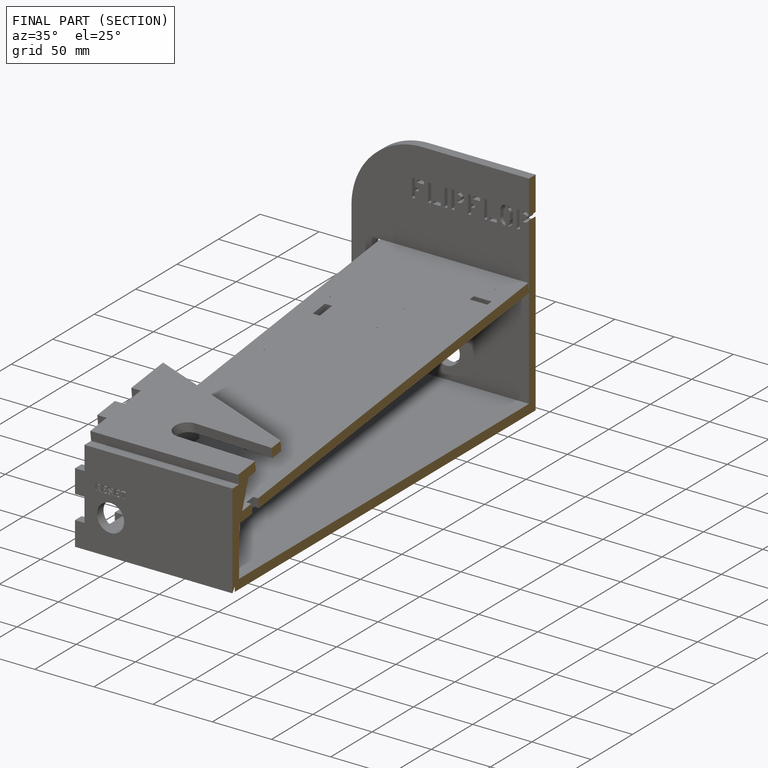
[diagram: finished part — half-section view (interior)]
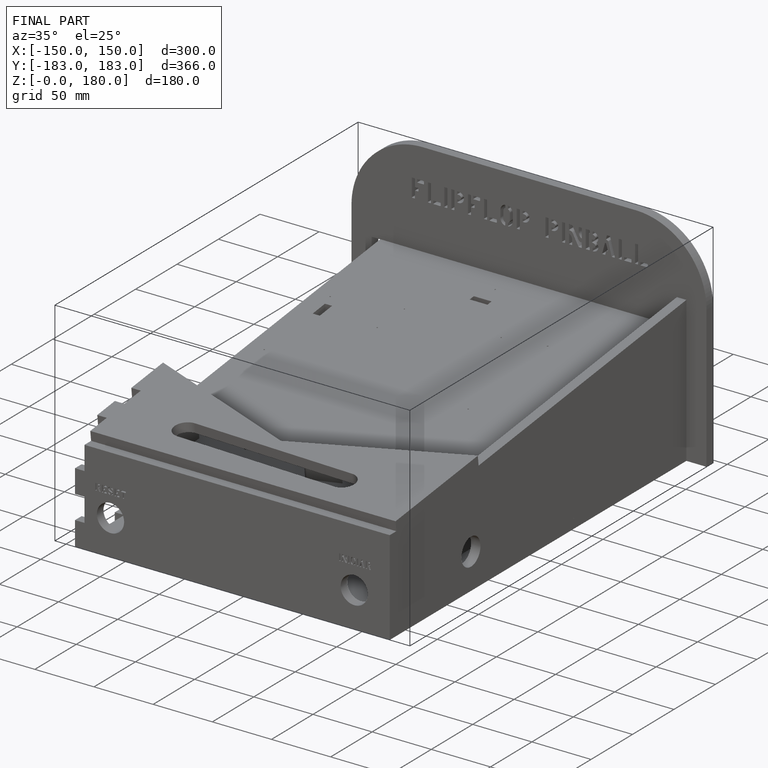
[diagram: finished part — iso view with bounding-box wireframe]
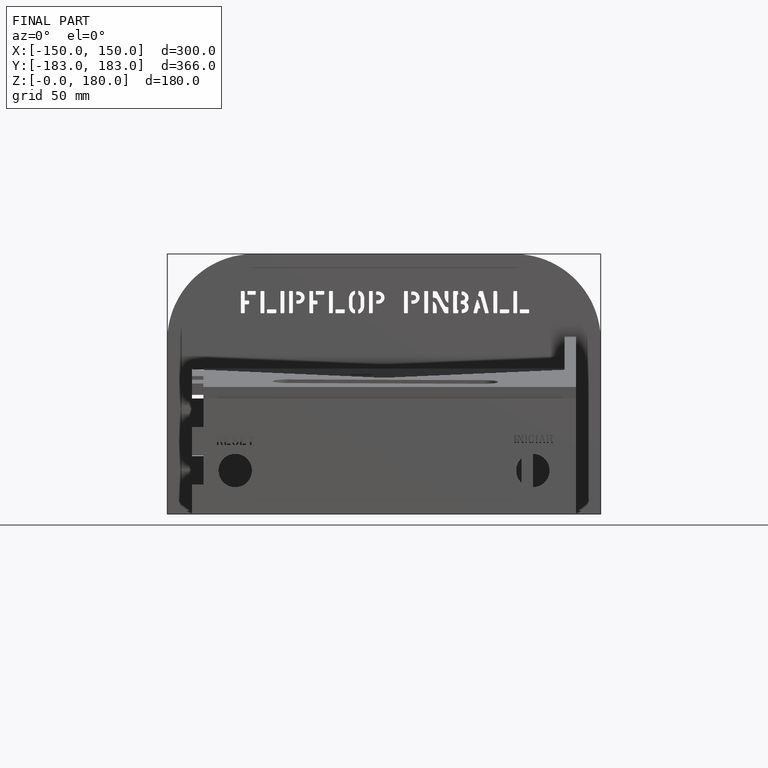
[diagram: finished part — front view with bounding-box wireframe]
